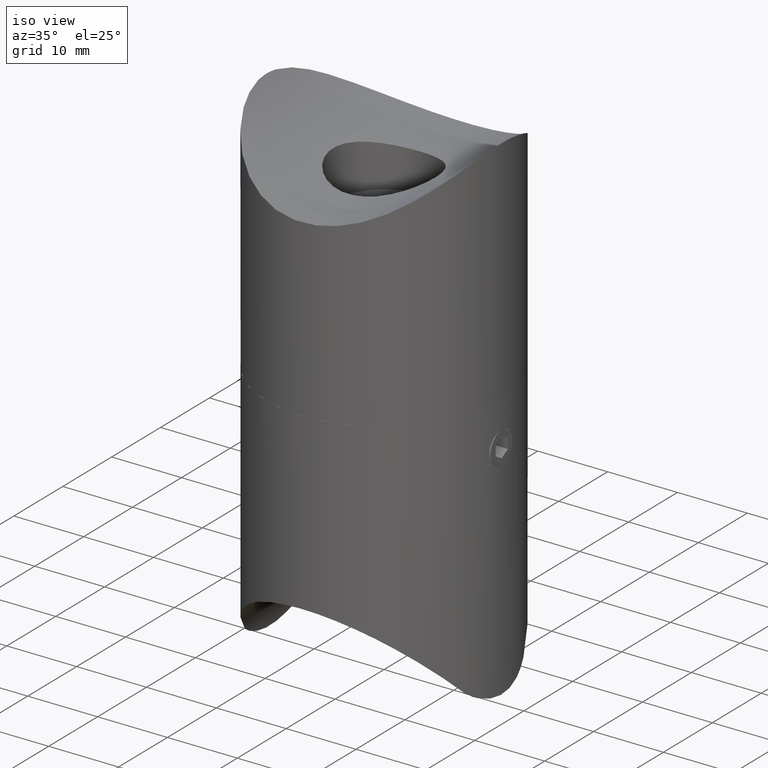
[diagram: clean part render]
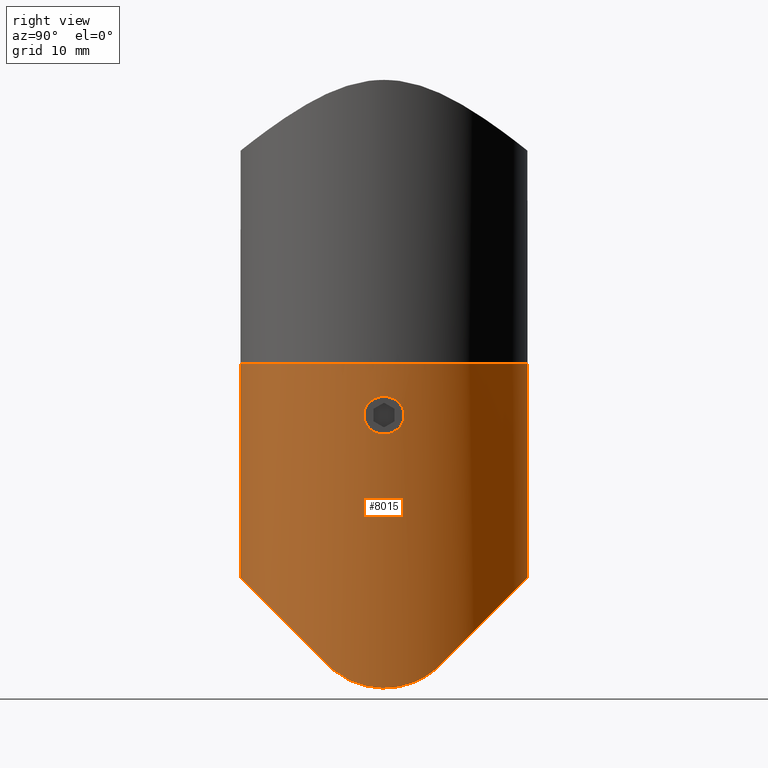
[diagram: tour spotlight — one face highlighted and labeled with its STEP entity id]
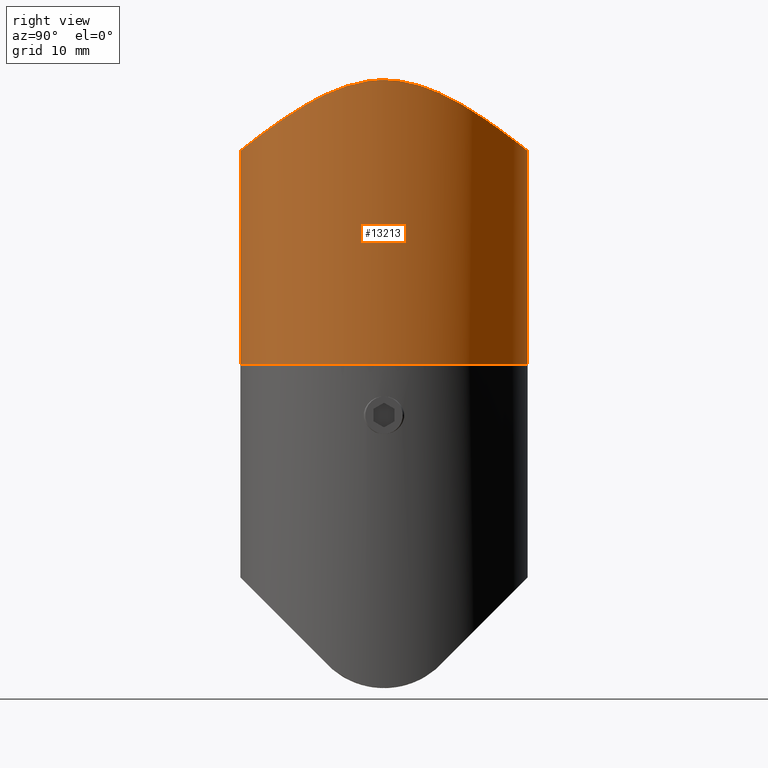
[diagram: tour spotlight — one face highlighted and labeled with its STEP entity id]
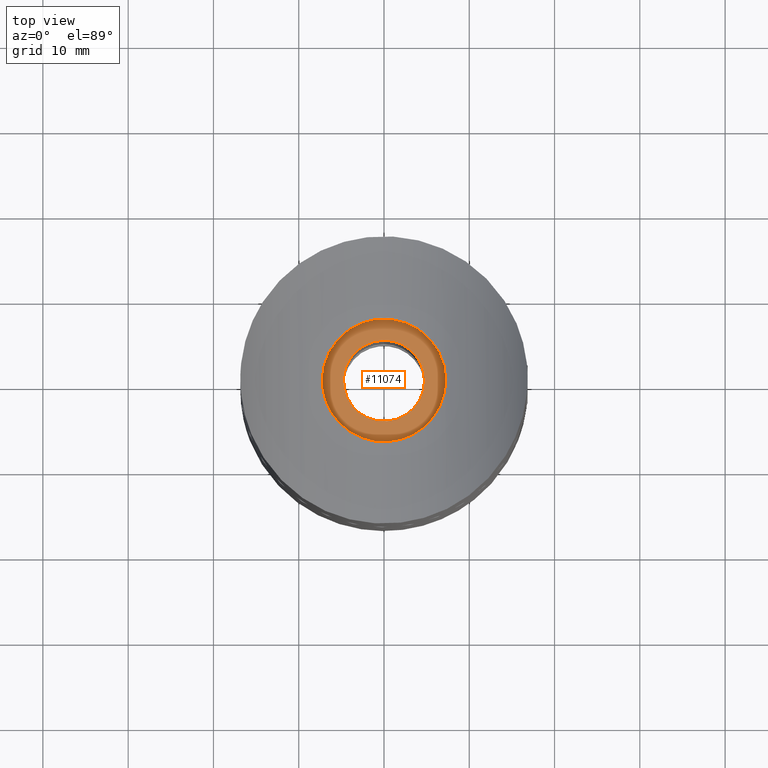
[diagram: tour spotlight — one face highlighted and labeled with its STEP entity id]
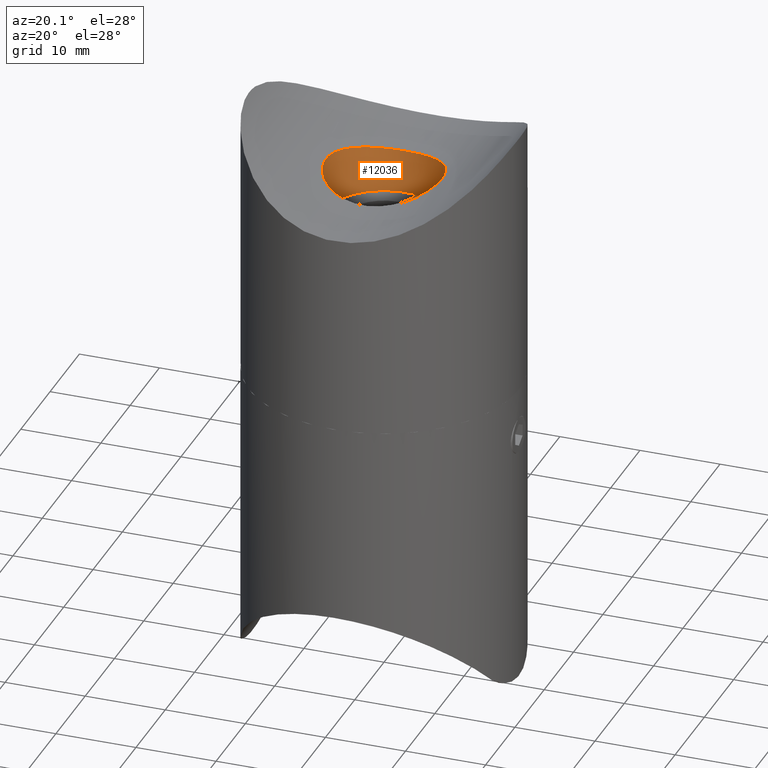
[diagram: tour spotlight — one face highlighted and labeled with its STEP entity id]
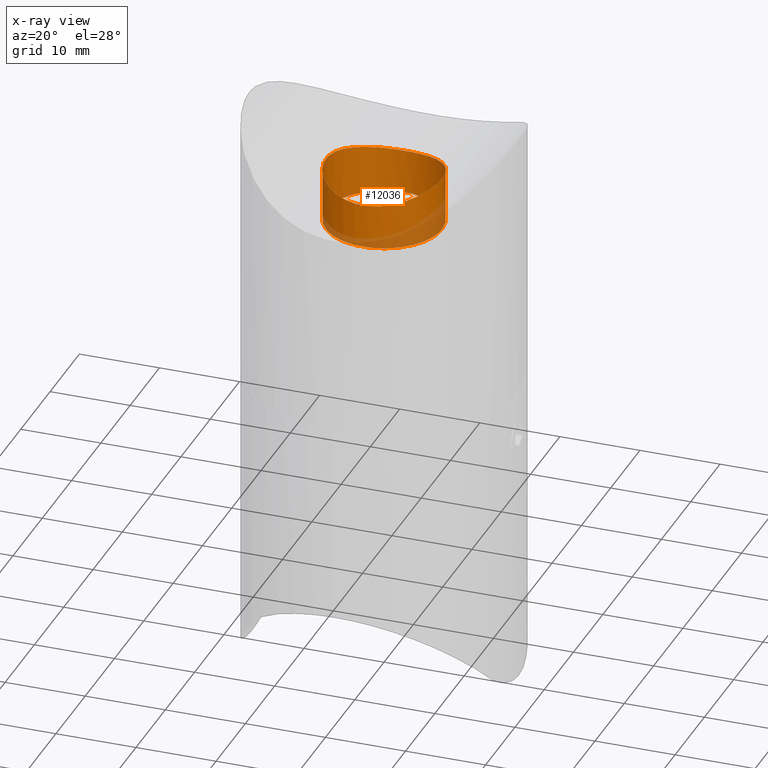
[diagram: x-ray of the same camera — body ghosted, this tour face saturated]
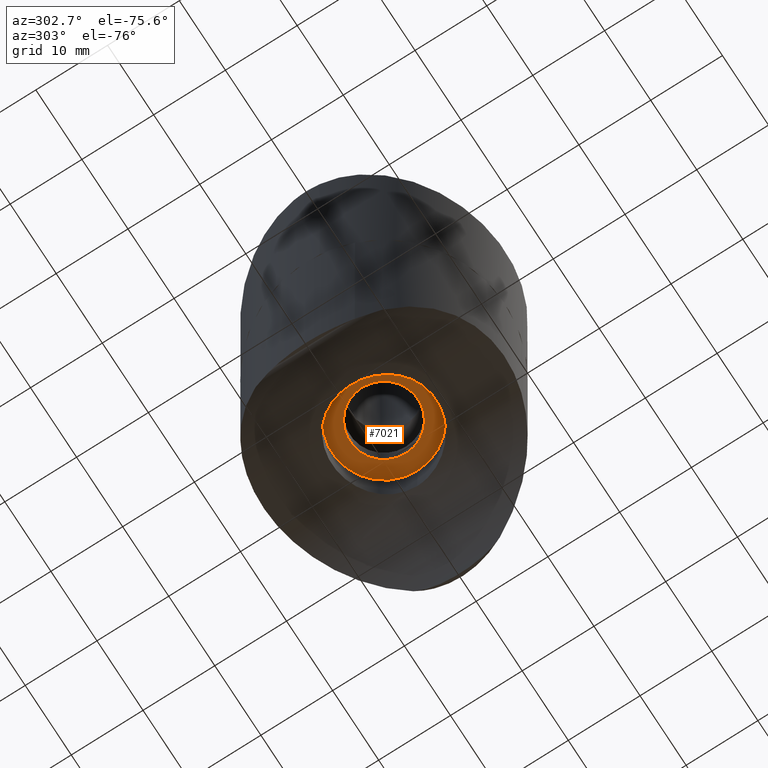
[diagram: tour spotlight — one face highlighted and labeled with its STEP entity id]
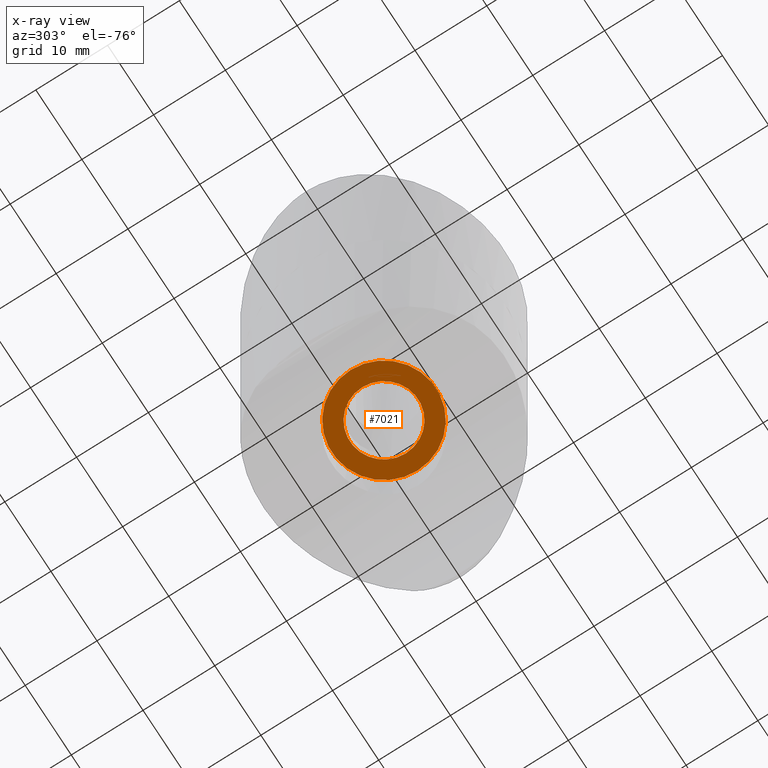
[diagram: x-ray of the same camera — body ghosted, this tour face saturated]
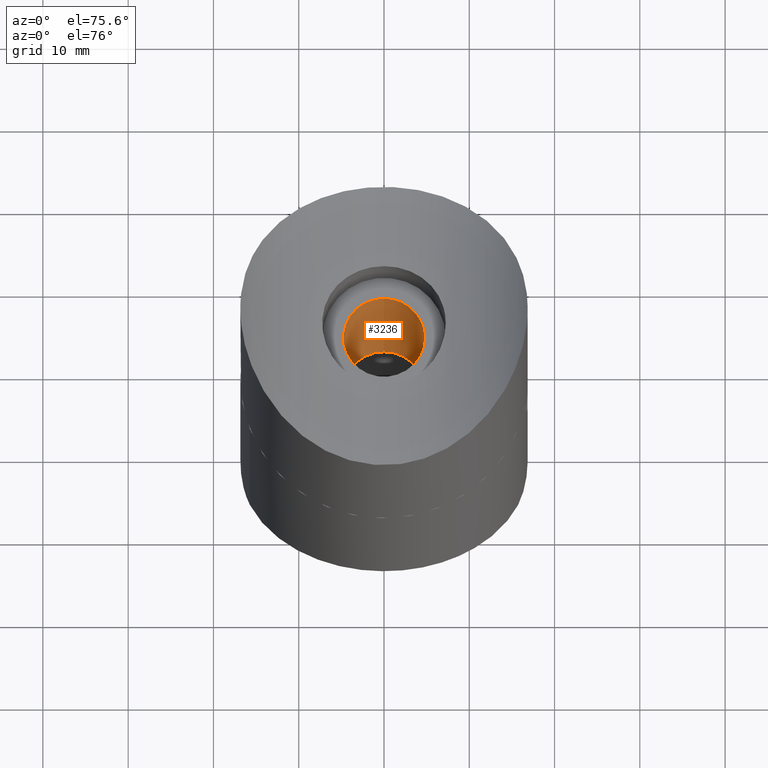
[diagram: tour spotlight — one face highlighted and labeled with its STEP entity id]
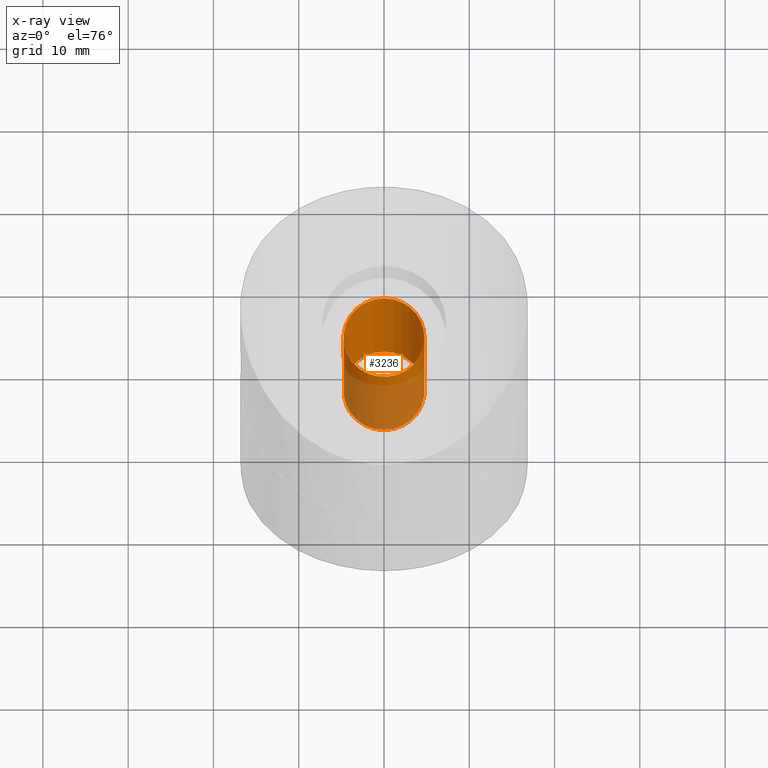
[diagram: x-ray of the same camera — body ghosted, this tour face saturated]
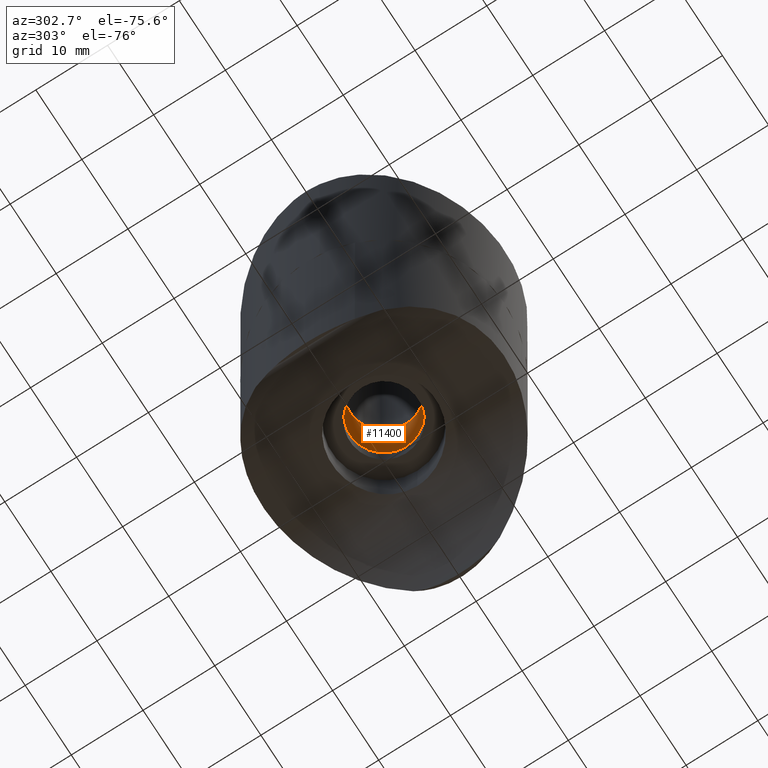
[diagram: tour spotlight — one face highlighted and labeled with its STEP entity id]
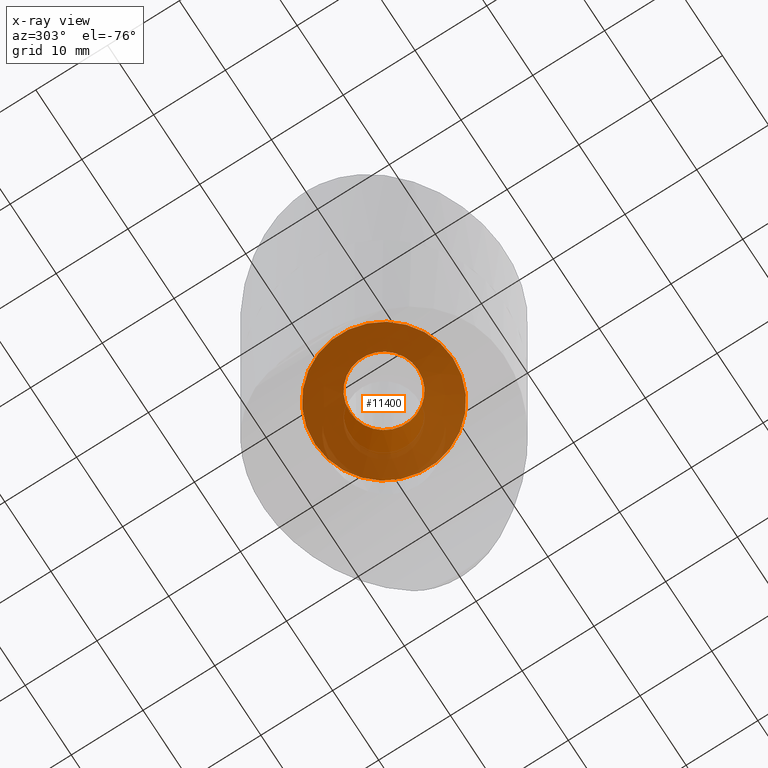
[diagram: x-ray of the same camera — body ghosted, this tour face saturated]
A machine part: a face-by-face anatomy tour. The part has 267 B-rep faces; the first image is the clean iso view, then the 7 largest visible faces are spotlighted one at a time (largest first), each with its STEP entity span.

Face 1 — right view, entity #8015. In plain terms, the highlighted cylindrical surface (bore or boss wall) has radius 16.85 mm, axis along (0, 0, 1).
Definition (entity closure, byte-faithful):
#128 = CARTESIAN_POINT ( 'NONE',  ( 16.82470805377696621, -0.9316069031304415882, 7.887072616402559078 ) ) ;
#223 = CARTESIAN_POINT ( 'NONE',  ( 16.75142118943714920, 1.821610551250329779, 7.053819643136172601 ) ) ;
#467 = CARTESIAN_POINT ( 'NONE',  ( 16.72038853387282842, 2.086105912219641034, 6.277310456367779956 ) ) ;
#500 = CARTESIAN_POINT ( 'NONE',  ( 16.43280884787452578, 3.762289881583479989, 37.23353797108027408 ) ) ;
#510 = CARTESIAN_POINT ( 'NONE',  ( 16.76708749003680765, 1.671266673559923310, 4.721056794194323558 ) ) ;
#578 = CARTESIAN_POINT ( 'NONE',  ( -16.85014251503895366, 0.2676459821920611493, 38.00025478994079720 ) ) ;
#620 = EDGE_CURVE ( 'NONE', #7857, #10049, #14077, .T. ) ;
#631 = CARTESIAN_POINT ( 'NONE',  ( -16.84348744544617560, 0.5445763428923199312, 37.98837341624884800 ) ) ;
#827 = CARTESIAN_POINT ( 'NONE',  ( 16.71493696397691409, -2.198981153887706430, 37.75670965707858784 ) ) ;
#872 = CARTESIAN_POINT ( 'NONE',  ( 16.85014251503895721, -0.2676459821920630922, 38.00025478994081141 ) ) ;
#1222 = CARTESIAN_POINT ( 'NONE',  ( 16.77577967731439301, 1.582762094997031577, 4.613065910484957399 ) ) ;
#1323 = CARTESIAN_POINT ( 'NONE',  ( 16.84175240667775952, -0.5439844916219714888, 3.967064444130375733 ) ) ;
#1563 = CARTESIAN_POINT ( 'NONE',  ( 16.72035001984090385, -2.086414395923750220, 6.275212510296473312 ) ) ;
#1604 = CARTESIAN_POINT ( 'NONE',  ( 16.58314585939784536, 2.998192180614575708, 37.51452188851639846 ) ) ;
#1615 = CARTESIAN_POINT ( 'NONE',  ( 16.74417814046707775, 1.886220721296384406, 6.933337249669180302 ) ) ;
#1697 = CARTESIAN_POINT ( 'NONE',  ( 16.62814693144454736, 2.738436798371199021, 37.59758244686475592 ) ) ;
#1719 = CARTESIAN_POINT ( 'NONE',  ( -16.43428046307178292, 3.756472632656497002, 37.23634495581666215 ) ) ;
#1849 = VERTEX_POINT ( 'NONE', #9237 ) ;
#2249 = CARTESIAN_POINT ( 'NONE',  ( -15.73081969632409916, 6.038527277552182326, 35.81147272244751889 ) ) ;
#2601 = FACE_OUTER_BOUND ( 'NONE', #8670, .T. ) ;
#2616 = CARTESIAN_POINT ( 'NONE',  ( 16.76730677969570849, -1.678588376582538011, 4.708782559360734865 ) ) ;
#2629 = CARTESIAN_POINT ( 'NONE',  ( -15.88728008807810710, -5.630936138327259144, 36.15159307419044410 ) ) ;
#2661 = EDGE_CURVE ( 'NONE', #4329, #7857, #10214, .T. ) ;
#2673 = CARTESIAN_POINT ( 'NONE',  ( 16.74399011788218061, 1.887882307002481275, 5.070033963584569925 ) ) ;
#2685 = CARTESIAN_POINT ( 'NONE',  ( -16.82226562529596947, -1.112895413794378285, 37.95068448030452402 ) ) ;
#2707 = CARTESIAN_POINT ( 'NONE',  ( 9.163197427450773702, -23.14767939304750399, 18.70232060695236243 ) ) ;
#2710 = CARTESIAN_POINT ( 'NONE',  ( 16.70681551791330577, 2.208307433939758813, 37.74175659974424946 ) ) ;
#2719 = CARTESIAN_POINT ( 'NONE',  ( 16.83685818288646985, -0.6774244628047977335, 4.007504924617327546 ) ) ;
#2784 = CARTESIAN_POINT ( 'NONE',  ( -16.84970803430263686, -0.5617719772155561619, 37.99947802054371948 ) ) ;
#3422 = CARTESIAN_POINT ( 'NONE',  ( 16.72687648871718125, 2.033425876355367645, 5.457848504207877482 ) ) ;
#3715 = CARTESIAN_POINT ( 'NONE',  ( 16.71864325555510078, 2.099873260360534566, 6.140772636756999248 ) ) ;
#3805 = CARTESIAN_POINT ( 'NONE',  ( 16.82226562529597302, 1.112895413794376731, 37.95068448030452402 ) ) ;
#3814 = CARTESIAN_POINT ( 'NONE',  ( 16.71861780999251579, -2.100075838938551431, 6.135933320310846817 ) ) ;
#3829 = CARTESIAN_POINT ( 'NONE',  ( -16.31214936237762103, -4.251566880823711259, 37.00407816512370829 ) ) ;
#3860 = CARTESIAN_POINT ( 'NONE',  ( 16.84970803430263331, 0.5617719772155539415, 37.99947802054371238 ) ) ;
#3868 = EDGE_LOOP ( 'NONE', ( #9592, #9424, #9000, #7279 ) ) ;
#3925 = CARTESIAN_POINT ( 'NONE',  ( -16.79577059308619269, 1.378449905016476906, 37.90279007098589403 ) ) ;
#4142 = CARTESIAN_POINT ( 'NONE',  ( 16.84348744544617560, -0.5445763428923213745, 37.98837341624884800 ) ) ;
#4329 = VERTEX_POINT ( 'NONE', #13818 ) ;
#4550 = CARTESIAN_POINT ( 'NONE',  ( 16.76718787598699123, -1.670252321054249478, 7.280216823563589124 ) ) ;
#4596 = CARTESIAN_POINT ( 'NONE',  ( 16.77600394136569406, 1.580396089796152648, 7.389635195289213421 ) ) ;
#4841 = CARTESIAN_POINT ( 'NONE',  ( 16.72032527160970972, 2.086609852128813003, 5.726488822860591910 ) ) ;
#4858 = CARTESIAN_POINT ( 'NONE',  ( -16.58314585939784180, -2.998192180614574820, 37.51452188851638425 ) ) ;
#4888 = CARTESIAN_POINT ( 'NONE',  ( 15.73081969632404409, 6.038527277552358186, 35.81147272244737678 ) ) ;
#4900 = CARTESIAN_POINT ( 'NONE',  ( 16.74399274423919337, -1.887859584753791120, 6.930019843766959120 ) ) ;
#4945 = CARTESIAN_POINT ( 'NONE',  ( 16.84167384015457003, -0.5465052815002038322, 8.032287449703323645 ) ) ;
#5129 = EDGE_CURVE ( 'NONE', #10049, #1849, #14128, .T. ) ;
#5208 = CYLINDRICAL_SURFACE ( 'NONE', #10139, 16.85000000000000142 ) ;
#5222 = CARTESIAN_POINT ( 'NONE',  ( 16.79577059308618914, -1.378449905016477350, 37.90279007098588693 ) ) ;
#5776 = CARTESIAN_POINT ( 'NONE',  ( 16.85000000000000142, 0.000000000000000000, 3.899999999999989697 ) ) ;
#5789 = EDGE_CURVE ( 'NONE', #12569, #12569, #9933, .T. ) ;
#5937 = CARTESIAN_POINT ( 'NONE',  ( 15.73081969632404409, 6.038527277552358186, 35.81147272244737678 ) ) ;
#5964 = CARTESIAN_POINT ( 'NONE',  ( 16.71861163317188925, 2.100125014199099471, 5.863034421944958829 ) ) ;
#5976 = CARTESIAN_POINT ( 'NONE',  ( -15.73081969632404409, -6.038527277552353745, 35.81147272244738389 ) ) ;
#6009 = CARTESIAN_POINT ( 'NONE',  ( 16.84825868416816519, -0.2771733612859200724, 8.086153213146793917 ) ) ;
#6054 = CARTESIAN_POINT ( 'NONE',  ( 16.84292318154716384, 0.5499933418785079020, 8.045080447486299136 ) ) ;
#6123 = CARTESIAN_POINT ( 'NONE',  ( -16.31093644594179537, 4.255802279276583278, 37.00168369420707393 ) ) ;
#6624 = CARTESIAN_POINT ( 'NONE',  ( 16.84828450116990695, -0.2754135483211228030, 3.913641095390027136 ) ) ;
#6669 = AXIS2_PLACEMENT_3D ( 'NONE', #10171, #9105, #12358 ) ;
#6821 = CARTESIAN_POINT ( 'NONE',  ( 16.79298819926606967, -1.388337579595593452, 4.418467793772453689 ) ) ;
#6928 = FACE_BOUND ( 'NONE', #9361, .T. ) ;
#6977 =( BOUNDED_CURVE ( )  B_SPLINE_CURVE ( 3, ( #7161, #2707, #10463, #11608 ),
 .UNSPECIFIED., .F., .T. ) 
 B_SPLINE_CURVE_WITH_KNOTS ( ( 4, 4 ),
 ( 5.078909860511432228, 7.487460753847730466 ),
 .UNSPECIFIED. ) 
 CURVE ( )  GEOMETRIC_REPRESENTATION_ITEM ( )  RATIONAL_B_SPLINE_CURVE ( ( 1.000000000000000000, 0.5722463809120582612, 0.5722463809120582612, 1.000000000000000000 ) ) 
 REPRESENTATION_ITEM ( '' )  );
#7030 = CARTESIAN_POINT ( 'NONE',  ( -16.62814693144455802, -2.738436798371198133, 37.59758244686476303 ) ) ;
#7067 = CARTESIAN_POINT ( 'NONE',  ( 16.81736275492434274, -1.054411588659091681, 7.821238976576492696 ) ) ;
#7111 = CARTESIAN_POINT ( 'NONE',  ( 16.31214936237762458, 4.251566880823713035, 37.00407816512372250 ) ) ;
#7112 = EDGE_CURVE ( 'NONE', #10507, #10507, #14220, .T. ) ;
#7118 = CARTESIAN_POINT ( 'NONE',  ( -15.73081969632409916, 6.038527277552182326, 35.81147272244751889 ) ) ;
#7121 = CARTESIAN_POINT ( 'NONE',  ( 16.83685912331941381, -0.6773975038951545180, 7.992502723524682828 ) ) ;
#7161 = CARTESIAN_POINT ( 'NONE',  ( 15.73081969632409916, -6.038527277552182326, 35.81147272244751889 ) ) ;
#7189 = CARTESIAN_POINT ( 'NONE',  ( -15.88888304916085481, 5.626760303622162063, 36.15507766016894209 ) ) ;
#7262 = DIRECTION ( 'NONE',  ( -1.000000000000000000, 0.000000000000000000, 0.000000000000000000 ) ) ;
#7279 = ORIENTED_EDGE ( 'NONE', *, *, #5129, .T. ) ;
#7450 = CARTESIAN_POINT ( 'NONE',  ( 16.03865052887910281, -5.188467017947991700, 36.46173526040616508 ) ) ;
#7857 = VERTEX_POINT ( 'NONE', #2249 ) ;
#7906 = CARTESIAN_POINT ( 'NONE',  ( 16.72583090175945486, -2.044555216642882201, 5.448102421703835851 ) ) ;
#7907 = CARTESIAN_POINT ( 'NONE',  ( 16.85000000000000142, 0.000000000000000000, 0.000000000000000000 ) ) ;
#7950 = CARTESIAN_POINT ( 'NONE',  ( 16.85001280083926289, 0.2734326887627684943, 8.100102711503058828 ) ) ;
#8015 = ADVANCED_FACE ( 'NONE', ( #6928, #2601, #10921 ), #5208, .T. ) ;
#8203 = CARTESIAN_POINT ( 'NONE',  ( 16.72699524459659060, 2.032451890674698891, 6.545782262721565381 ) ) ;
#8250 = CARTESIAN_POINT ( 'NONE',  ( 16.84279730069747671, 0.5537141514316638036, 3.955935405624201540 ) ) ;
#8301 = CARTESIAN_POINT ( 'NONE',  ( -16.63580770995027436, 2.728839096824725807, 37.61289066814492088 ) ) ;
#8355 = CARTESIAN_POINT ( 'NONE',  ( -16.43280884787452223, -3.762289881583476880, 37.23353797108027408 ) ) ;
#8604 = CARTESIAN_POINT ( 'NONE',  ( 16.63580770995026725, -2.728839096824727584, 37.61289066814492088 ) ) ;
#8670 = EDGE_LOOP ( 'NONE', ( #13192 ) ) ;
#8955 = CARTESIAN_POINT ( 'NONE',  ( 16.81860268782239842, 1.058784162637065762, 4.165940152441776512 ) ) ;
#9000 = ORIENTED_EDGE ( 'NONE', *, *, #620, .T. ) ;
#9052 = CARTESIAN_POINT ( 'NONE',  ( 16.80169361874308720, 1.289740945821950868, 7.679737895979164009 ) ) ;
#9105 = DIRECTION ( 'NONE',  ( 0.000000000000000000, 0.000000000000000000, 1.000000000000000000 ) ) ;
#9237 = CARTESIAN_POINT ( 'NONE',  ( 15.73081969632409916, -6.038527277552182326, 35.81147272244751889 ) ) ;
#9291 = CARTESIAN_POINT ( 'NONE',  ( 16.76730258132955598, 1.669113840482515876, 7.281740936459419444 ) ) ;
#9302 = CARTESIAN_POINT ( 'NONE',  ( -15.73081969632409916, 6.038527277552182326, 35.81147272244751889 ) ) ;
#9341 = CARTESIAN_POINT ( 'NONE',  ( 16.85000000000000853, 0.2777611495988379642, 3.899999999999991473 ) ) ;
#9361 = EDGE_LOOP ( 'NONE', ( #13112 ) ) ;
#9424 = ORIENTED_EDGE ( 'NONE', *, *, #2661, .T. ) ;
#9459 = CARTESIAN_POINT ( 'NONE',  ( -16.03865052887909926, 5.188467017947989923, 36.46173526040616508 ) ) ;
#9592 = ORIENTED_EDGE ( 'NONE', *, *, #13161, .T. ) ;
#9714 = CARTESIAN_POINT ( 'NONE',  ( 16.31093644594179892, -4.255802279276587718, 37.00168369420708103 ) ) ;
#9933 = CIRCLE ( 'NONE', #6669, 16.85000000000000142 ) ;
#10049 = VERTEX_POINT ( 'NONE', #5937 ) ;
#10069 = CARTESIAN_POINT ( 'NONE',  ( 16.77572472370035328, -1.583421296792411281, 7.386350526010375006 ) ) ;
#10112 = CARTESIAN_POINT ( 'NONE',  ( 16.81880704758045297, 1.055596263666972900, 7.835909377102741935 ) ) ;
#10139 = AXIS2_PLACEMENT_3D ( 'NONE', #11758, #13794, #7262 ) ;
#10171 = CARTESIAN_POINT ( 'NONE',  ( 0.000000000000000000, 0.000000000000000000, 0.000000000000000000 ) ) ;
#10214 = B_SPLINE_CURVE_WITH_KNOTS ( 'NONE', 3,
 ( #5976, #2629, #10527, #3829, #8355, #4858, #7030, #13807, #13707, #2685, #2784, #578, #631, #11637, #3925, #12698, #8301, #1719, #6123, #9459, #7189, #9302 ),
 .UNSPECIFIED., .F., .F.,
 ( 4, 2, 2, 2, 2, 2, 2, 2, 2, 2, 4 ),
 ( 0.001765099865405819063, 0.003425316248073022492, 0.005085532630740225921, 0.005915640822073822865, 0.006745749013407419808, 0.008405965396074611962, 0.009236073587408209773, 0.01006618177874180585, 0.01172639816140899800, 0.01338661454407618842, 0.01504683092674338057 ),
 .UNSPECIFIED. ) ;
#10364 = CARTESIAN_POINT ( 'NONE',  ( 16.73193389099209583, 1.991913270354100263, 6.679138096748464370 ) ) ;
#10419 = CARTESIAN_POINT ( 'NONE',  ( 16.80167048361962046, -1.280409023430384430, 4.329858094025039073 ) ) ;
#10463 = CARTESIAN_POINT ( 'NONE',  ( -9.163197427450540999, -23.14767939304759281, 18.70232060695226650 ) ) ;
#10464 = CARTESIAN_POINT ( 'NONE',  ( 16.74059423650856004, 1.936793445644416911, 37.80306997967089444 ) ) ;
#10476 = CARTESIAN_POINT ( 'NONE',  ( 16.75011601015751594, -1.835003824087994673, 4.942853871778710939 ) ) ;
#10507 = VERTEX_POINT ( 'NONE', #5776 ) ;
#10527 = CARTESIAN_POINT ( 'NONE',  ( -16.03787406605432153, -5.191207297345767024, 36.46020626863278835 ) ) ;
#10829 = CARTESIAN_POINT ( 'NONE',  ( 16.81639131896426775, -1.099370604302407850, 37.93980328780560285 ) ) ;
#10921 = FACE_OUTER_BOUND ( 'NONE', #3868, .T. ) ;
#11028 = CARTESIAN_POINT ( 'NONE',  ( 16.85000000000000142, 1.897353801849632760E-16, 3.899999999999990141 ) ) ;
#11480 = CARTESIAN_POINT ( 'NONE',  ( 16.75135943013242112, -1.822166108549415631, 7.052809861359713217 ) ) ;
#11522 = CARTESIAN_POINT ( 'NONE',  ( 9.163197427450526789, 23.14767939304759281, 18.70232060695227361 ) ) ;
#11525 = CARTESIAN_POINT ( 'NONE',  ( 16.72695422414210853, -2.032789266246281645, 6.544641860652885335 ) ) ;
#11569 = CARTESIAN_POINT ( 'NONE',  ( 16.80157130502821872, -1.281669033357676346, 7.669137411069561594 ) ) ;
#11608 = CARTESIAN_POINT ( 'NONE',  ( -15.73081969632404409, -6.038527277552353745, 35.81147272244738389 ) ) ;
#11611 = CARTESIAN_POINT ( 'NONE',  ( 16.03787406605431798, 5.191207297345769689, 36.46020626863278125 ) ) ;
#11637 = CARTESIAN_POINT ( 'NONE',  ( -16.81639131896427131, 1.099370604302405630, 37.93980328780560995 ) ) ;
#11758 = CARTESIAN_POINT ( 'NONE',  ( 0.000000000000000000, 0.000000000000000000, 44.99999999999970868 ) ) ;
#12140 = CARTESIAN_POINT ( 'NONE',  ( 16.84999999999999787, -0.1388805747994196760, 3.899999999999989697 ) ) ;
#12282 = CARTESIAN_POINT ( 'NONE',  ( 16.75121714408563989, 1.823480020288709813, 4.949405580903636803 ) ) ;
#12341 = CARTESIAN_POINT ( 'NONE',  ( 16.85000000000000142, 1.897353801849632760E-16, 3.899999999999990141 ) ) ;
#12358 = DIRECTION ( 'NONE',  ( 1.000000000000000000, 0.000000000000000000, 0.000000000000000000 ) ) ;
#12569 = VERTEX_POINT ( 'NONE', #7907 ) ;
#12590 = CARTESIAN_POINT ( 'NONE',  ( 16.73179024279504290, -1.993113670112692137, 6.675609813099995904 ) ) ;
#12620 = CARTESIAN_POINT ( 'NONE',  ( 15.88728008807810710, 5.630936138327259144, 36.15159307419043699 ) ) ;
#12631 = CARTESIAN_POINT ( 'NONE',  ( 15.73081969632404409, 6.038527277552358186, 35.81147272244737678 ) ) ;
#12633 = CARTESIAN_POINT ( 'NONE',  ( 16.71864651011834368, -2.099847349993974266, 5.724633527494356500 ) ) ;
#12686 = CARTESIAN_POINT ( 'NONE',  ( -9.163197427450777255, 23.14767939304749333, 18.70232060695237308 ) ) ;
#12688 = CARTESIAN_POINT ( 'NONE',  ( 16.73179229270343171, 1.993095920084948958, 5.324348397974262070 ) ) ;
#12698 = CARTESIAN_POINT ( 'NONE',  ( -16.71493696397692119, 2.198981153887705542, 37.75670965707859494 ) ) ;
#12948 = CARTESIAN_POINT ( 'NONE',  ( 15.88888304916085481, -5.626760303622168280, 36.15507766016894919 ) ) ;
#12998 = CARTESIAN_POINT ( 'NONE',  ( 16.43428046307179002, -3.756472632656498334, 37.23634495581666215 ) ) ;
#13112 = ORIENTED_EDGE ( 'NONE', *, *, #7112, .T. ) ;
#13161 = EDGE_CURVE ( 'NONE', #1849, #4329, #6977, .T. ) ;
#13192 = ORIENTED_EDGE ( 'NONE', *, *, #5789, .T. ) ;
#13407 = CARTESIAN_POINT ( 'NONE',  ( 16.79305717288698929, -1.387585599757974686, 7.582339087379592613 ) ) ;
#13449 = CARTESIAN_POINT ( 'NONE',  ( 16.82470459632055082, -0.9316719486962703467, 4.112957894417013982 ) ) ;
#13694 = CARTESIAN_POINT ( 'NONE',  ( 16.81750207811601427, -1.052236741413237642, 4.177469041855343512 ) ) ;
#13707 = CARTESIAN_POINT ( 'NONE',  ( -16.74059423650856004, -1.936793445644416911, 37.80306997967088734 ) ) ;
#13748 = CARTESIAN_POINT ( 'NONE',  ( 16.80145891328454866, 1.292732342686097047, 4.322581995373128372 ) ) ;
#13794 = DIRECTION ( 'NONE',  ( 0.000000000000000000, 0.000000000000000000, -1.000000000000000000 ) ) ;
#13798 = CARTESIAN_POINT ( 'NONE',  ( 16.84999357196270608, -0.1378978997242325810, 8.099948422649504209 ) ) ;
#13807 = CARTESIAN_POINT ( 'NONE',  ( -16.70681551791330577, -2.208307433939757480, 37.74175659974423525 ) ) ;
#13818 = CARTESIAN_POINT ( 'NONE',  ( -15.73081969632404409, -6.038527277552353745, 35.81147272244738389 ) ) ;
#14014 = CARTESIAN_POINT ( 'NONE',  ( 15.73081969632409916, -6.038527277552182326, 35.81147272244751889 ) ) ;
#14077 =( BOUNDED_CURVE ( )  B_SPLINE_CURVE ( 3, ( #7118, #12686, #11522, #12631 ),
 .UNSPECIFIED., .F., .T. ) 
 B_SPLINE_CURVE_WITH_KNOTS ( ( 4, 4 ),
 ( 5.078909860511432228, 7.487460753847729578 ),
 .UNSPECIFIED. ) 
 CURVE ( )  GEOMETRIC_REPRESENTATION_ITEM ( )  RATIONAL_B_SPLINE_CURVE ( ( 1.000000000000000000, 0.5722463809120585942, 0.5722463809120585942, 1.000000000000000000 ) ) 
 REPRESENTATION_ITEM ( '' )  );
#14128 = B_SPLINE_CURVE_WITH_KNOTS ( 'NONE', 3,
 ( #4888, #12620, #11611, #7111, #500, #1604, #1697, #2710, #10464, #3805, #3860, #872, #4142, #10829, #5222, #827, #8604, #12998, #9714, #7450, #12948, #14014 ),
 .UNSPECIFIED., .F., .F.,
 ( 4, 2, 2, 2, 2, 2, 2, 2, 2, 2, 4 ),
 ( 0.001765099865405812341, 0.003425316248073014685, 0.005085532630740217247, 0.005915640822073814191, 0.006745749013407412002, 0.008405965396074606757, 0.009236073587408204569, 0.01006618177874180065, 0.01172639816140899453, 0.01338661454407618842, 0.01504683092674338231 ),
 .UNSPECIFIED. ) ;
#14220 = B_SPLINE_CURVE_WITH_KNOTS ( 'NONE', 3,
 ( #11028, #12140, #6624, #1323, #2719, #13449, #13694, #10419, #6821, #2616, #10476, #7906, #12633, #3814, #1563, #11525, #12590, #4900, #11480, #4550, #10069, #13407, #11569, #7067, #128, #7121, #4945, #6009, #13798, #7950, #6054, #10112, #9052, #4596, #9291, #223, #1615, #10364, #8203, #467, #3715, #5964, #4841, #3422, #12688, #2673, #12282, #510, #1222, #13748, #8955, #8250, #9341, #12341 ),
 .UNSPECIFIED., .T., .F.,
 ( 4, 2, 2, 2, 2, 2, 2, 2, 2, 2, 2, 2, 2, 2, 2, 2, 2, 2, 2, 2, 2, 2, 2, 2, 2, 2, 4 ),
 ( 0.000000000000000000, 0.0004106973737139094430, 0.0008213947474278188859, 0.001232092121141728329, 0.001642789494855637772, 0.002464184242283454489, 0.003285578989711271207, 0.003696276363425178048, 0.004106973737139084021, 0.004517671110852990862, 0.004928368484566897703, 0.005339065858280803677, 0.005749763231994710518, 0.006160460605708617358, 0.006571157979422523332, 0.007392552726850337014, 0.008213947474278150696, 0.008624644847992055802, 0.009035342221705962643, 0.009446039595419869483, 0.009856736969133776324, 0.01026743434284768143, 0.01067813171656158827, 0.01108882909027549511, 0.01149952646398940195, 0.01232092121141721910, 0.01314231595884503279 ),
 .UNSPECIFIED. ) ;

Face 2 — right view, entity #13213. In plain terms, the highlighted cylindrical surface (bore or boss wall) has radius 16.85 mm, axis along (-0, -0, -1).
Definition (entity closure, byte-faithful):
#7 = CARTESIAN_POINT ( 'NONE',  ( 12.14784170154766407, -11.68723754140081716, 28.82084089679802474 ) ) ;
#151 = CARTESIAN_POINT ( 'NONE',  ( 5.358378406793971926, -15.98417104893211693, 25.68166419200519712 ) ) ;
#154 = CARTESIAN_POINT ( 'NONE',  ( 8.169526389507437258, 14.74616821905684283, 26.63106651715606432 ) ) ;
#197 = CARTESIAN_POINT ( 'NONE',  ( 2.226111781718973504, -16.71136270365287047, 25.11004907578960044 ) ) ;
#204 = CARTESIAN_POINT ( 'NONE',  ( -5.336367273435848269, 15.99150897234712865, 25.67594462300922586 ) ) ;
#246 = CARTESIAN_POINT ( 'NONE',  ( -12.80575477641203008, -10.99506568324726885, 29.28733733575847964 ) ) ;
#254 = CARTESIAN_POINT ( 'NONE',  ( 8.612801258602942767, 14.49133680741023333, 26.82261412847639193 ) ) ;
#295 = CARTESIAN_POINT ( 'NONE',  ( -16.75380553784719950, 1.797915459636668878, 33.20961894323340147 ) ) ;
#569 = ORIENTED_EDGE ( 'NONE', *, *, #11146, .T. ) ;
#870 = CARTESIAN_POINT ( 'NONE',  ( 0.000000000000000000, 0.000000000000000000, 46.20000000000000284 ) ) ;
#1204 = CARTESIAN_POINT ( 'NONE',  ( -3.799131235580128774, 16.42494322206031043, 25.33634400596605118 ) ) ;
#1260 = CARTESIAN_POINT ( 'NONE',  ( 9.879719700273652094, 13.65886599007097146, 27.43734619141542908 ) ) ;
#1294 = EDGE_CURVE ( 'NONE', #11564, #6948, #2233, .T. ) ;
#1305 = CARTESIAN_POINT ( 'NONE',  ( 15.81468342291589657, 5.907119930207309189, 32.07368849711814818 ) ) ;
#1400 = CARTESIAN_POINT ( 'NONE',  ( -7.307117564174850699, 15.21988607760609469, 26.27266255987092336 ) ) ;
#1790 = CARTESIAN_POINT ( 'NONE',  ( -16.75380553784719950, 1.797915459636668878, 33.20961894323340147 ) ) ;
#2155 = CARTESIAN_POINT ( 'NONE',  ( 15.20531351964298850, -7.277979822336642535, 31.42358611185059303 ) ) ;
#2233 = B_SPLINE_CURVE_WITH_KNOTS ( 'NONE', 3,
 ( #12012, #5483, #5438, #7709, #9924, #7759, #5778, #10208 ),
 .UNSPECIFIED., .F., .F.,
 ( 4, 2, 2, 4 ),
 ( 0.006278479700174100127, 0.008077391916698430444, 0.008976848024960595168, 0.009876304133222761628 ),
 .UNSPECIFIED. ) ;
#2311 = CARTESIAN_POINT ( 'NONE',  ( 2.144770709731461444, 16.72175678162838608, 25.10180907550674689 ) ) ;
#2349 = CARTESIAN_POINT ( 'NONE',  ( -16.69637106392835690, -2.333116379150808495, 33.13554521106189554 ) ) ;
#2353 = CARTESIAN_POINT ( 'NONE',  ( 12.15067100014986501, 11.71608894380430321, 28.80603942311008936 ) ) ;
#2367 = B_SPLINE_CURVE_WITH_KNOTS ( 'NONE', 3,
 ( #3222, #13381, #10966, #4374, #12069, #7778, #5456, #13179, #7685, #8786, #2155, #9898, #3263, #12114, #13230, #7, #8836, #9947, #3318, #11052, #5554, #2446, #151, #5690, #10091, #3449, #197, #12512, #11207, #13568, #2537, #4764, #4572, #6744, #5799, #13428, #12457, #10181, #12314, #11393, #2393, #8032, #13523, #7880, #246, #3637, #12411, #3585, #11306, #10290, #8083, #5878, #4665, #3547, #2349, #10238 ),
 .UNSPECIFIED., .F., .F.,
 ( 4, 2, 2, 2, 2, 2, 2, 2, 2, 2, 2, 2, 2, 2, 2, 2, 2, 2, 2, 2, 2, 2, 2, 2, 2, 2, 2, 4 ),
 ( 0.05762379732413834554, 0.05843939610888660569, 0.05925499489363487277, 0.06088619246313139999, 0.06251739003262793415, 0.06414858760212446831, 0.06741098274111752275, 0.06904218031061404304, 0.07067337788011057720, 0.07393577301910363164, 0.07719816815809668609, 0.07882936572759322025, 0.08046056329708975441, 0.08209176086658628857, 0.08372295843608282273, 0.08535415600557935689, 0.08698535357507587717, 0.09024774871406893162, 0.09187894628356546578, 0.09351014385306199994, 0.09514134142255853410, 0.09677253899205506826, 0.1000349341310481366, 0.1016661317005446707, 0.1032973292700412049, 0.1065597244090342732, 0.1081909219785307796, 0.1098221195480273138 ),
 .UNSPECIFIED. ) ;
#2393 = CARTESIAN_POINT ( 'NONE',  ( -9.874391082289394106, -13.66273255866296665, 27.43453152128715189 ) ) ;
#2401 = CARTESIAN_POINT ( 'NONE',  ( 16.26849822515842092, 4.418982904158281322, 32.60477335205871441 ) ) ;
#2446 = CARTESIAN_POINT ( 'NONE',  ( 5.861876297262081259, -15.80630658064992744, 25.82008765974585884 ) ) ;
#2451 = CARTESIAN_POINT ( 'NONE',  ( -12.16653524012214227, 11.69924100671745570, 28.81735680001559174 ) ) ;
#2502 = CARTESIAN_POINT ( 'NONE',  ( -14.50563928189218466, 8.587789373369821178, 30.73546195249033630 ) ) ;
#2537 = CARTESIAN_POINT ( 'NONE',  ( -1.047622871701130221, -16.82617475906373272, 25.01895457081716856 ) ) ;
#3199 = CARTESIAN_POINT ( 'NONE',  ( -16.81711578317035105, -1.207961391989270883, 33.28084493682786160 ) ) ;
#3222 = CARTESIAN_POINT ( 'NONE',  ( 16.75380553784718529, -1.797915459636763025, 33.20961894323338726 ) ) ;
#3244 = AXIS2_PLACEMENT_3D ( 'NONE', #3996, #7398, #10725 ) ;
#3263 = CARTESIAN_POINT ( 'NONE',  ( 13.99864917260999775, -9.428928461346940182, 30.26089817622014522 ) ) ;
#3318 = CARTESIAN_POINT ( 'NONE',  ( 9.922135874653822185, -13.65573024371412281, 27.44193756741609036 ) ) ;
#3409 = CARTESIAN_POINT ( 'NONE',  ( 4.288095124775098910, 16.33153352628145427, 25.41009414772277353 ) ) ;
#3449 = CARTESIAN_POINT ( 'NONE',  ( 2.763565128029129347, -16.63055004528183645, 25.17409886494595028 ) ) ;
#3459 = CARTESIAN_POINT ( 'NONE',  ( -14.75306275984906179, 8.155817596017406856, 30.97203812562293024 ) ) ;
#3511 = CARTESIAN_POINT ( 'NONE',  ( 16.61322421872186794, 2.864456683789939451, 33.02921195284994837 ) ) ;
#3547 = CARTESIAN_POINT ( 'NONE',  ( -16.61395989766804604, -2.860104366934913322, 33.03014467461200354 ) ) ;
#3550 = CARTESIAN_POINT ( 'NONE',  ( 11.05725543779406905, 12.72420385158253175, 28.10678940156158490 ) ) ;
#3585 = CARTESIAN_POINT ( 'NONE',  ( -14.50379350185093053, -8.591077129407022284, 30.73367796759794146 ) ) ;
#3592 = CARTESIAN_POINT ( 'NONE',  ( -15.81691932689636637, 5.900288470181504152, 32.07626911739440345 ) ) ;
#3637 = CARTESIAN_POINT ( 'NONE',  ( -13.69523529492123615, -9.828637311950920719, 30.01275475370344381 ) ) ;
#3639 = EDGE_CURVE ( 'NONE', #7379, #7379, #13337, .T. ) ;
#3996 = CARTESIAN_POINT ( 'NONE',  ( 0.000000000000000000, 0.000000000000000000, 0.000000000000000000 ) ) ;
#4020 = B_SPLINE_CURVE_WITH_KNOTS ( 'NONE', 3,
 ( #8618, #3199, #6437, #10885, #5429, #10799, #4254, #7705 ),
 .UNSPECIFIED., .F., .F.,
 ( 4, 2, 2, 4 ),
 ( 0.006278479700174095790, 0.008077391916698380137, 0.008976848024960522310, 0.009876304133222662748 ),
 .UNSPECIFIED. ) ;
#4053 = DIRECTION ( 'NONE',  ( -1.000000000000000000, 0.000000000000000000, 0.000000000000000000 ) ) ;
#4254 = CARTESIAN_POINT ( 'NONE',  ( -16.78558553031975364, 1.501774831318672065, 33.24537242244879565 ) ) ;
#4374 = CARTESIAN_POINT ( 'NONE',  ( 16.60678426932988216, -2.865252522061736862, 33.02201781672016523 ) ) ;
#4531 = CARTESIAN_POINT ( 'NONE',  ( -2.743212171241442565, 16.63390949165644628, 25.17144021655068187 ) ) ;
#4572 = CARTESIAN_POINT ( 'NONE',  ( -2.670267878382413418, -16.64599718174675758, 25.16187577647438900 ) ) ;
#4579 = CARTESIAN_POINT ( 'NONE',  ( -16.45308313992315163, 3.645481845178408342, 32.83050756234046474 ) ) ;
#4597 = CARTESIAN_POINT ( 'NONE',  ( 16.85000000000000142, 0.000000000000000000, 0.000000000000000000 ) ) ;
#4622 = CARTESIAN_POINT ( 'NONE',  ( 16.75380553784744819, 1.797915459634366275, 33.20961894323372121 ) ) ;
#4665 = CARTESIAN_POINT ( 'NONE',  ( -16.40117179362283650, -3.899413323456883962, 32.76607590578823448 ) ) ;
#4674 = CARTESIAN_POINT ( 'NONE',  ( -13.70251451450455882, 9.818345896335925360, 30.01897497850235297 ) ) ;
#4759 = EDGE_CURVE ( 'NONE', #10591, #13150, #4020, .T. ) ;
#4764 = CARTESIAN_POINT ( 'NONE',  ( -2.129375905199051289, -16.72373848630211057, 25.10023797743738072 ) ) ;
#4793 = CYLINDRICAL_SURFACE ( 'NONE', #5443, 16.85000000000000142 ) ;
#5429 = CARTESIAN_POINT ( 'NONE',  ( -16.84196098908678962, 0.6013945562252345223, 33.30872998036008426 ) ) ;
#5438 = CARTESIAN_POINT ( 'NONE',  ( 16.84978820426995583, 0.6107508088839092020, 33.31752083329007519 ) ) ;
#5443 = AXIS2_PLACEMENT_3D ( 'NONE', #870, #10685, #4053 ) ;
#5456 = CARTESIAN_POINT ( 'NONE',  ( 16.26802396891895341, -4.420290972579389077, 32.60423611358149998 ) ) ;
#5483 = CARTESIAN_POINT ( 'NONE',  ( 16.81711578317034750, 1.207961391989255784, 33.28084493682786871 ) ) ;
#5554 = CARTESIAN_POINT ( 'NONE',  ( 7.328113689039677858, -15.20969873285167218, 26.28045099295936637 ) ) ;
#5654 = CARTESIAN_POINT ( 'NONE',  ( -16.26338901050295149, 4.415185518121612418, 32.60027404866490741 ) ) ;
#5690 = CARTESIAN_POINT ( 'NONE',  ( 4.338623556160785100, -16.29055827495922415, 25.44209381662098934 ) ) ;
#5699 = CARTESIAN_POINT ( 'NONE',  ( 13.69601455258159106, 9.827532191674912099, 30.01342196753115132 ) ) ;
#5754 = CARTESIAN_POINT ( 'NONE',  ( -8.216568726637952125, 14.74550625619387390, 26.63435696207914205 ) ) ;
#5778 = CARTESIAN_POINT ( 'NONE',  ( 16.78558553031975364, -1.501774831318759107, 33.24537242244878854 ) ) ;
#5799 = CARTESIAN_POINT ( 'NONE',  ( -5.295640238658860355, -16.03075755658450774, 25.64663496829462019 ) ) ;
#5878 = CARTESIAN_POINT ( 'NONE',  ( -16.26968676083988186, -4.414653115392175309, 32.60619533452197061 ) ) ;
#6437 = CARTESIAN_POINT ( 'NONE',  ( -16.84978820426996293, -0.6107508088839381788, 33.31752083329007519 ) ) ;
#6744 = CARTESIAN_POINT ( 'NONE',  ( -4.275487582432500488, -16.33495995711751547, 25.40740007888074103 ) ) ;
#6751 = CARTESIAN_POINT ( 'NONE',  ( 6.769805067169788693, 15.43918504160768279, 26.10347206256634678 ) ) ;
#6804 = CARTESIAN_POINT ( 'NONE',  ( 14.75099718467579990, 8.159482255568171638, 30.97004999902917888 ) ) ;
#6845 = CARTESIAN_POINT ( 'NONE',  ( -13.98083161575371314, 9.418070111741503325, 30.25942738383626107 ) ) ;
#6892 = CARTESIAN_POINT ( 'NONE',  ( -16.39327470766794193, 3.905410301788218685, 32.75712410169236932 ) ) ;
#6948 = VERTEX_POINT ( 'NONE', #12925 ) ;
#7343 = ORIENTED_EDGE ( 'NONE', *, *, #3639, .T. ) ;
#7379 = VERTEX_POINT ( 'NONE', #4597 ) ;
#7398 = DIRECTION ( 'NONE',  ( 0.000000000000000000, 0.000000000000000000, 1.000000000000000000 ) ) ;
#7685 = CARTESIAN_POINT ( 'NONE',  ( 15.79722130753614273, -5.884323297562113808, 32.05903466573799676 ) ) ;
#7705 = CARTESIAN_POINT ( 'NONE',  ( -16.75380553784719950, 1.797915459636668878, 33.20961894323340147 ) ) ;
#7709 = CARTESIAN_POINT ( 'NONE',  ( 16.85010436341558560, -0.2965682245793260785, 33.31787598540265805 ) ) ;
#7751 = B_SPLINE_CURVE_WITH_KNOTS ( 'NONE', 3,
 ( #295, #9119, #13529, #4579, #6892, #5654, #7837, #3592, #8040, #3459, #2502, #6845, #4674, #10046, #2451, #12370, #10244, #11314, #12416, #5754, #1400, #12262, #204, #11353, #1204, #4531, #13477, #12464, #13335, #8937, #12321, #2311, #13390, #3409, #11168, #6751, #11213, #154, #254, #7889, #1260, #8983, #3550, #2353, #10097, #5699, #10187, #13432, #6804, #7931, #1305, #2401, #10141, #3511, #11261, #4622 ),
 .UNSPECIFIED., .F., .F.,
 ( 4, 2, 2, 2, 2, 2, 2, 2, 2, 2, 2, 2, 2, 2, 2, 2, 2, 2, 2, 2, 2, 2, 2, 2, 2, 2, 2, 4 ),
 ( 0.001797071188729705820, 0.003429396536276128025, 0.004245559210049341947, 0.005061721883822555001, 0.008326372578915426301, 0.009958697926461862818, 0.01159102327400829760, 0.01485567396910117063, 0.01648799931664760368, 0.01812032466419403673, 0.02138497535928690976, 0.02301730070683334975, 0.02464962605437978974, 0.02628195140192622972, 0.02791427674947266971, 0.02954660209701910970, 0.03117892744456554621, 0.03444357813965841925, 0.03607590348720485229, 0.03770822883475128534, 0.03934055418229771839, 0.04097287952984415144, 0.04423753022493701753, 0.04586985557248345752, 0.04750218092002989750, 0.05076683161512276360, 0.05239915696266919665, 0.05403148231021562969 ),
 .UNSPECIFIED. ) ;
#7759 = CARTESIAN_POINT ( 'NONE',  ( 16.80968338510309579, -1.203274641454647131, 33.27245781012612014 ) ) ;
#7778 = CARTESIAN_POINT ( 'NONE',  ( 16.39769156396029359, -3.914395231886452109, 32.76180958509625896 ) ) ;
#7837 = CARTESIAN_POINT ( 'NONE',  ( -16.19317297380285581, 4.665861560800693475, 32.51663168366926726 ) ) ;
#7880 = CARTESIAN_POINT ( 'NONE',  ( -12.14829044945831527, -11.71866700652318904, 28.80431455712911770 ) ) ;
#7889 = CARTESIAN_POINT ( 'NONE',  ( 9.467902566528589858, 13.94768830224980682, 27.22574771631734336 ) ) ;
#7931 = CARTESIAN_POINT ( 'NONE',  ( 15.43333503724850075, 6.835272058449380239, 31.65127670461850684 ) ) ;
#8032 = CARTESIAN_POINT ( 'NONE',  ( -10.66925105049445222, -13.05147279953754769, 27.87478544482808118 ) ) ;
#8040 = CARTESIAN_POINT ( 'NONE',  ( -15.43657138871976287, 6.828297707567234198, 31.65465715993374829 ) ) ;
#8083 = CARTESIAN_POINT ( 'NONE',  ( -15.81587402105427387, -5.904075427236818996, 32.07502002598859292 ) ) ;
#8108 = FACE_OUTER_BOUND ( 'NONE', #13435, .T. ) ;
#8197 = ORIENTED_EDGE ( 'NONE', *, *, #4759, .T. ) ;
#8499 = EDGE_LOOP ( 'NONE', ( #7343 ) ) ;
#8618 = CARTESIAN_POINT ( 'NONE',  ( -16.75380553784744464, -1.797915459634364943, 33.20961894323372121 ) ) ;
#8786 = CARTESIAN_POINT ( 'NONE',  ( 15.41652502934092794, -6.819693375014072245, 31.64493704432103627 ) ) ;
#8836 = CARTESIAN_POINT ( 'NONE',  ( 11.80069880928318682, -12.03796462434776693, 28.58264790919936260 ) ) ;
#8937 = CARTESIAN_POINT ( 'NONE',  ( 0.5219374642350144144, 16.85068932348676185, 24.99945211805962586 ) ) ;
#8983 = CARTESIAN_POINT ( 'NONE',  ( 10.67375571841074766, 13.04777453646355134, 27.87741890015321999 ) ) ;
#9119 = CARTESIAN_POINT ( 'NONE',  ( -16.69628913397185599, 2.333879840274673878, 33.13543954529636437 ) ) ;
#9688 = CARTESIAN_POINT ( 'NONE',  ( 16.75380553784744819, 1.797915459634366275, 33.20961894323372121 ) ) ;
#9898 = CARTESIAN_POINT ( 'NONE',  ( 14.52070012751384454, -8.606042406746979623, 30.74020911186212857 ) ) ;
#9924 = CARTESIAN_POINT ( 'NONE',  ( 16.84196098908678962, -0.6013945562252968058, 33.30872998036007715 ) ) ;
#9947 = CARTESIAN_POINT ( 'NONE',  ( 10.70661871493656392, -13.04902886926198313, 27.88173960203671342 ) ) ;
#10046 = CARTESIAN_POINT ( 'NONE',  ( -12.81924726272118953, 10.97882872889603867, 29.29778716607261302 ) ) ;
#10091 = CARTESIAN_POINT ( 'NONE',  ( 3.819823308502365844, -16.42015337678989084, 25.34011599625377897 ) ) ;
#10097 = CARTESIAN_POINT ( 'NONE',  ( 12.80735689825122847, 10.99313075027084174, 29.28858074011126078 ) ) ;
#10141 = CARTESIAN_POINT ( 'NONE',  ( 16.39995856442145694, 3.904572975383503675, 32.76459022546254829 ) ) ;
#10181 = CARTESIAN_POINT ( 'NONE',  ( -8.161898109808259250, -14.75041744657117881, 26.62786449763916252 ) ) ;
#10187 = CARTESIAN_POINT ( 'NONE',  ( 13.97603220644063882, 9.425331887618698445, 30.25517287783123166 ) ) ;
#10208 = CARTESIAN_POINT ( 'NONE',  ( 16.75380553784718529, -1.797915459636763025, 33.20961894323338726 ) ) ;
#10238 = CARTESIAN_POINT ( 'NONE',  ( -16.75380553784744464, -1.797915459634364943, 33.20961894323372121 ) ) ;
#10244 = CARTESIAN_POINT ( 'NONE',  ( -10.69725563323686579, 13.02852624726641650, 27.89112979285645011 ) ) ;
#10278 = ORIENTED_EDGE ( 'NONE', *, *, #1294, .T. ) ;
#10290 = CARTESIAN_POINT ( 'NONE',  ( -15.43430176968157674, -6.833269803921846908, 31.65226904028011035 ) ) ;
#10591 = VERTEX_POINT ( 'NONE', #10746 ) ;
#10685 = DIRECTION ( 'NONE',  ( -0.000000000000000000, -0.000000000000000000, -1.000000000000000000 ) ) ;
#10725 = DIRECTION ( 'NONE',  ( 1.000000000000000000, 0.000000000000000000, 0.000000000000000000 ) ) ;
#10746 = CARTESIAN_POINT ( 'NONE',  ( -16.75380553784744464, -1.797915459634364943, 33.20961894323372121 ) ) ;
#10799 = CARTESIAN_POINT ( 'NONE',  ( -16.80968338510309579, 1.203274641454568972, 33.27245781012613435 ) ) ;
#10885 = CARTESIAN_POINT ( 'NONE',  ( -16.85010436341558560, 0.2965682245792717886, 33.31787598540264383 ) ) ;
#10966 = CARTESIAN_POINT ( 'NONE',  ( 16.68983104180946597, -2.333344290733118775, 33.12735535605911252 ) ) ;
#11052 = CARTESIAN_POINT ( 'NONE',  ( 8.232750737893814730, -14.73599552428981951, 26.64148518349316674 ) ) ;
#11146 = EDGE_CURVE ( 'NONE', #6948, #10591, #2367, .T. ) ;
#11168 = CARTESIAN_POINT ( 'NONE',  ( 5.306850470216027738, 16.02699658927675230, 25.64957126391556130 ) ) ;
#11204 = FACE_OUTER_BOUND ( 'NONE', #8499, .T. ) ;
#11207 = CARTESIAN_POINT ( 'NONE',  ( 0.5841043057721526655, -16.84867426340133534, 25.00105370940486793 ) ) ;
#11213 = CARTESIAN_POINT ( 'NONE',  ( 7.248630009870074886, 15.21998691042773189, 26.27158606248755746 ) ) ;
#11261 = CARTESIAN_POINT ( 'NONE',  ( 16.69606477119892673, 2.335970556080453786, 33.13515018270945234 ) ) ;
#11306 = CARTESIAN_POINT ( 'NONE',  ( -14.75118604601161998, -8.159178700619847291, 30.97022498411584479 ) ) ;
#11314 = CARTESIAN_POINT ( 'NONE',  ( -9.903849118679035612, 13.64139094421709864, 27.45007256069275314 ) ) ;
#11353 = CARTESIAN_POINT ( 'NONE',  ( -4.317588479607628038, 16.29612237958512821, 25.43772424526779474 ) ) ;
#11393 = CARTESIAN_POINT ( 'NONE',  ( -9.462089858984089830, -13.95165178289191132, 27.22283437220676916 ) ) ;
#11564 = VERTEX_POINT ( 'NONE', #9688 ) ;
#12012 = CARTESIAN_POINT ( 'NONE',  ( 16.75380553784744819, 1.797915459634366275, 33.20961894323372121 ) ) ;
#12069 = CARTESIAN_POINT ( 'NONE',  ( 16.55869545670852006, -3.131002145723943642, 32.96153644354916423 ) ) ;
#12114 = CARTESIAN_POINT ( 'NONE',  ( 13.11605269385810679, -10.58903935107858985, 29.54006458195000562 ) ) ;
#12262 = CARTESIAN_POINT ( 'NONE',  ( -5.838225507060470498, 15.81507896776697386, 25.81328106177775084 ) ) ;
#12314 = CARTESIAN_POINT ( 'NONE',  ( -8.605838591192126685, -14.49549150987674651, 26.81950718102002185 ) ) ;
#12321 = CARTESIAN_POINT ( 'NONE',  ( 1.063993972526199316, 16.82513322644681253, 25.01978237812180339 ) ) ;
#12349 = EDGE_CURVE ( 'NONE', #13150, #11564, #7751, .T. ) ;
#12370 = CARTESIAN_POINT ( 'NONE',  ( -11.07962249389864695, 12.70464660521076716, 28.12053149330794710 ) ) ;
#12411 = CARTESIAN_POINT ( 'NONE',  ( -13.97546826525529262, -9.426182628964703270, 30.25467372798096122 ) ) ;
#12416 = CARTESIAN_POINT ( 'NONE',  ( -9.493096010451701261, 13.93048786777047710, 27.23838811128990756 ) ) ;
#12457 = CARTESIAN_POINT ( 'NONE',  ( -7.239436499536627601, -15.22438684388241370, 26.26822566737115849 ) ) ;
#12464 = CARTESIAN_POINT ( 'NONE',  ( -1.110949988475411487, 16.82232410423466362, 25.02201606362497444 ) ) ;
#12512 = CARTESIAN_POINT ( 'NONE',  ( 1.131191374759157320, -16.82098757955128931, 25.02307836998064161 ) ) ;
#12925 = CARTESIAN_POINT ( 'NONE',  ( 16.75380553784718529, -1.797915459636763025, 33.20961894323338726 ) ) ;
#13150 = VERTEX_POINT ( 'NONE', #1790 ) ;
#13179 = CARTESIAN_POINT ( 'NONE',  ( 15.96780198721222455, -5.405263715376884548, 32.25286053680741105 ) ) ;
#13213 = ADVANCED_FACE ( 'NONE', ( #8108, #11204 ), #4793, .T. ) ;
#13230 = CARTESIAN_POINT ( 'NONE',  ( 12.80511607947298280, -10.96314651668087414, 29.29928311190644052 ) ) ;
#13335 = CARTESIAN_POINT ( 'NONE',  ( -0.5655346474773457199, 16.84928247599124163, 25.00057029603105718 ) ) ;
#13337 = CIRCLE ( 'NONE', #3244, 16.85000000000000142 ) ;
#13381 = CARTESIAN_POINT ( 'NONE',  ( 16.72501149668051923, -2.066231616422521622, 33.17248302210472843 ) ) ;
#13390 = CARTESIAN_POINT ( 'NONE',  ( 2.685829350290289685, 16.64346365637013392, 25.16388089529019467 ) ) ;
#13428 = CARTESIAN_POINT ( 'NONE',  ( -6.760111160549207021, -15.44344587327716667, 26.10019771209238826 ) ) ;
#13432 = CARTESIAN_POINT ( 'NONE',  ( 14.50402328495608728, 8.590673196943274803, 30.73389846338883302 ) ) ;
#13435 = EDGE_LOOP ( 'NONE', ( #569, #8197, #13519, #10278 ) ) ;
#13477 = CARTESIAN_POINT ( 'NONE',  ( -2.205245963399959486, 16.71411644047380207, 25.10786630691053389 ) ) ;
#13519 = ORIENTED_EDGE ( 'NONE', *, *, #12349, .T. ) ;
#13523 = CARTESIAN_POINT ( 'NONE',  ( -11.05315867005546515, -12.72778801395283388, 28.10427145339251709 ) ) ;
#13529 = CARTESIAN_POINT ( 'NONE',  ( -16.61362573693858735, 2.862493780592012094, 33.02971028138078680 ) ) ;
#13568 = CARTESIAN_POINT ( 'NONE',  ( -0.5049331366982651170, -16.85123273833959345, 24.99902020662671376 ) ) ;

Face 3 — top view, entity #11074. In plain terms, the highlighted planar face has unit normal (0, 0, 1).
Definition (entity closure, byte-faithful):
#477 = EDGE_CURVE ( 'NONE', #652, #652, #771, .T. ) ;
#652 = VERTEX_POINT ( 'NONE', #12049 ) ;
#771 = CIRCLE ( 'NONE', #9266, 7.250000000000000000 ) ;
#2460 = EDGE_LOOP ( 'NONE', ( #3677 ) ) ;
#3020 = EDGE_LOOP ( 'NONE', ( #12594 ) ) ;
#3057 = CARTESIAN_POINT ( 'NONE',  ( 0.000000000000000000, 0.000000000000000000, 19.50000000000000355 ) ) ;
#3677 = ORIENTED_EDGE ( 'NONE', *, *, #477, .T. ) ;
#5341 = FACE_OUTER_BOUND ( 'NONE', #2460, .T. ) ;
#5912 = DIRECTION ( 'NONE',  ( 1.000000000000000000, 0.000000000000000000, 0.000000000000000000 ) ) ;
#6266 = AXIS2_PLACEMENT_3D ( 'NONE', #3057, #7325, #14031 ) ;
#6503 = PLANE ( 'NONE',  #13955 ) ;
#6884 = FACE_BOUND ( 'NONE', #3020, .T. ) ;
#7325 = DIRECTION ( 'NONE',  ( -0.000000000000000000, -0.000000000000000000, -1.000000000000000000 ) ) ;
#7859 = CARTESIAN_POINT ( 'NONE',  ( 4.750000000000000000, 0.000000000000000000, 19.50000000000000355 ) ) ;
#8558 = DIRECTION ( 'NONE',  ( 1.000000000000000000, 0.000000000000000000, -0.000000000000000000 ) ) ;
#9266 = AXIS2_PLACEMENT_3D ( 'NONE', #12436, #12392, #5912 ) ;
#9618 = DIRECTION ( 'NONE',  ( 0.000000000000000000, 0.000000000000000000, 1.000000000000000000 ) ) ;
#10143 = VERTEX_POINT ( 'NONE', #7859 ) ;
#11074 = ADVANCED_FACE ( 'NONE', ( #5341, #6884 ), #6503, .T. ) ;
#11887 = CARTESIAN_POINT ( 'NONE',  ( 0.000000000000000000, 0.000000000000000000, 19.50000000000000355 ) ) ;
#12049 = CARTESIAN_POINT ( 'NONE',  ( 7.250000000000000000, 0.000000000000000000, 19.50000000000000355 ) ) ;
#12392 = DIRECTION ( 'NONE',  ( 0.000000000000000000, 0.000000000000000000, 1.000000000000000000 ) ) ;
#12436 = CARTESIAN_POINT ( 'NONE',  ( 0.000000000000000000, 0.000000000000000000, 19.50000000000000355 ) ) ;
#12594 = ORIENTED_EDGE ( 'NONE', *, *, #12783, .T. ) ;
#12783 = EDGE_CURVE ( 'NONE', #10143, #10143, #13622, .T. ) ;
#13622 = CIRCLE ( 'NONE', #6266, 4.750000000000000000 ) ;
#13955 = AXIS2_PLACEMENT_3D ( 'NONE', #11887, #9618, #8558 ) ;
#14031 = DIRECTION ( 'NONE',  ( 1.000000000000000000, 0.000000000000000000, 0.000000000000000000 ) ) ;

Face 4 — auxiliary view, entity #12036. An x-ray twin of the same camera follows (body ghosted, this face saturated) — the face is partly hidden behind the body. In plain terms, the highlighted cylindrical surface (bore or boss wall) has radius 7.25 mm, axis along (0, 0, 1).
Definition (entity closure, byte-faithful):
#117 = CARTESIAN_POINT ( 'NONE',  ( -0.9587532348326602838, 7.190350821776163137, 25.02033660952204386 ) ) ;
#402 = CARTESIAN_POINT ( 'NONE',  ( -0.4800756467866370003, 7.238085387647868352, 25.00408349533767094 ) ) ;
#477 = EDGE_CURVE ( 'NONE', #652, #652, #771, .T. ) ;
#560 = CARTESIAN_POINT ( 'NONE',  ( 1.658086648949340436, -7.061898216450463117, 25.06363438643857933 ) ) ;
#652 = VERTEX_POINT ( 'NONE', #12049 ) ;
#655 = DIRECTION ( 'NONE',  ( 1.000000000000000000, 0.000000000000000000, 0.000000000000000000 ) ) ;
#657 = CARTESIAN_POINT ( 'NONE',  ( 5.892557090182336310, -4.230376132583586468, 25.83491791462317266 ) ) ;
#747 = CARTESIAN_POINT ( 'NONE',  ( 3.640337174190668712, -6.287877510260853064, 25.31099678021441335 ) ) ;
#771 = CIRCLE ( 'NONE', #9266, 7.250000000000000000 ) ;
#790 = CARTESIAN_POINT ( 'NONE',  ( -0.9566369692030692873, -7.202342973613696131, 25.01643312506579875 ) ) ;
#833 = CARTESIAN_POINT ( 'NONE',  ( -4.960688375816871165, 5.292462506426915958, 25.58783515313074375 ) ) ;
#878 = CARTESIAN_POINT ( 'NONE',  ( -2.346359400707022314, 6.876387900135069842, 25.12556071525185075 ) ) ;
#931 = CARTESIAN_POINT ( 'NONE',  ( -3.223449022790387364, 6.498295588379971122, 25.24543072876374339 ) ) ;
#956 = CARTESIAN_POINT ( 'NONE',  ( 7.062527813327395876, 1.655145732846094120, 26.21092440739839446 ) ) ;
#976 = CARTESIAN_POINT ( 'NONE',  ( -0.4722111775666738565, -7.250316275388796861, 24.99989183980574836 ) ) ;
#1504 = CARTESIAN_POINT ( 'NONE',  ( -0.2388465963188745045, 7.250001156584477968, 24.99999960446994152 ) ) ;
#1543 = EDGE_CURVE ( 'NONE', #13599, #13599, #2425, .T. ) ;
#1692 = CARTESIAN_POINT ( 'NONE',  ( 0.9512028090831824434, 7.203228716476409943, 25.01613312446809090 ) ) ;
#1751 = CARTESIAN_POINT ( 'NONE',  ( 5.292002883686151016, -4.961068277643231994, 25.67041370422165514 ) ) ;
#1878 = CARTESIAN_POINT ( 'NONE',  ( -5.759433065516850192, -4.428706587053825139, 25.79549507831404398 ) ) ;
#2065 = CARTESIAN_POINT ( 'NONE',  ( -4.961887728149400267, -5.291291510677460508, 25.58813029866553634 ) ) ;
#2088 = CARTESIAN_POINT ( 'NONE',  ( 4.432367805953222550, 5.756904445230272671, 25.46463419026553154 ) ) ;
#2425 = B_SPLINE_CURVE_WITH_KNOTS ( 'NONE', 3,
 ( #2819, #6191, #10556, #11668, #5037, #11757, #12770, #7261, #9532, #657, #2952, #8389, #1751, #12868, #6236, #747, #4059, #11807, #6290, #7169, #560, #8284, #6331, #976, #790, #5415, #3049, #3187, #10787, #8708, #6371, #3090, #2065, #5229, #1878, #4199, #9806, #5275, #10927, #7454, #7546, #8528, #8654, #3147, #4288, #13138, #14020, #13006, #7407, #14117, #5320, #3002, #833, #10874, #7503, #13053, #10739, #12952, #931, #8568, #878, #8609, #6702, #117, #402, #1504, #2654, #1692, #7397, #8600, #9709, #5501, #11495, #10212, #2717, #11440, #2088, #6775, #13793, #13077, #12019, #10813, #6397, #6456, #4225, #956, #13035, #4176, #8686 ),
 .UNSPECIFIED., .T., .F.,
 ( 4, 2, 2, 2, 2, 2, 2, 2, 2, 2, 2, 2, 2, 2, 2, 2, 2, 2, 2, 2, 2, 1, 2, 2, 2, 2, 2, 2, 2, 2, 2, 2, 2, 2, 2, 2, 2, 2, 2, 2, 2, 2, 2, 2, 4 ),
 ( 0.000000000000000000, 0.001427308038129306532, 0.002140962057193959798, 0.002854616076258613064, 0.004281924114387921330, 0.004995578133452572428, 0.005709232152517225260, 0.007136540190646527455, 0.008563848228775828783, 0.009277502247840480748, 0.009991156266905130978, 0.01141846430503443144, 0.01284577234316373710, 0.01427308038129303583, 0.01570038841942233976, 0.01641404243848698999, 0.01712769645755164022, 0.01855500449568094068, 0.01998231253381023767, 0.02140962057193953813, 0.02212327459100418836, 0.02283692861006883512, 0.02355058262913348535, 0.02426423664819812864, 0.02569154468632742910, 0.02711885272445672262, 0.02854616076258602309, 0.02925981478165067332, 0.02997346880071532355, 0.03068712281977997031, 0.03140077683884461707, 0.03282808487697392447, 0.03354173889603856429, 0.03425539291510321799, 0.03568270095323251151, 0.03639635497229715827, 0.03711000899136181197, 0.03782366301042645179, 0.03853731702949110549, 0.03996462506762039901, 0.04139193310574969947, 0.04281924114387899993, 0.04353289516294364669, 0.04424654918200830039, 0.04567385722013758698 ),
 .UNSPECIFIED. ) ;
#2454 = ORIENTED_EDGE ( 'NONE', *, *, #477, .F. ) ;
#2654 = CARTESIAN_POINT ( 'NONE',  ( 0.4777985065261786124, 7.249997686576094225, 25.00000079114732543 ) ) ;
#2717 = CARTESIAN_POINT ( 'NONE',  ( 3.636215122921611975, 6.276662310834707270, 25.31309908041850676 ) ) ;
#2819 = CARTESIAN_POINT ( 'NONE',  ( 7.250000000000000888, 4.336808689942017736E-16, 26.27821544138177146 ) ) ;
#2952 = CARTESIAN_POINT ( 'NONE',  ( 5.750198254161105638, -4.421941696019373147, 25.79413230358358078 ) ) ;
#3002 = CARTESIAN_POINT ( 'NONE',  ( -5.462926514089700980, 4.789915247397692255, 25.71304050749441927 ) ) ;
#3049 = CARTESIAN_POINT ( 'NONE',  ( -2.343731365980564973, -6.877354188263144152, 25.12524757484252547 ) ) ;
#3090 = CARTESIAN_POINT ( 'NONE',  ( -4.785265091308676944, -5.451572531739593330, 25.54627725870567900 ) ) ;
#3147 = CARTESIAN_POINT ( 'NONE',  ( -7.238519723795990402, 0.4726323275835445648, 26.27402570532306569 ) ) ;
#3187 = CARTESIAN_POINT ( 'NONE',  ( -3.226555368670444235, -6.510024408526108530, 25.24224232055189532 ) ) ;
#3574 = FACE_OUTER_BOUND ( 'NONE', #7485, .T. ) ;
#4059 = CARTESIAN_POINT ( 'NONE',  ( 3.224516823743702076, -6.510582053894638399, 25.24205241274554368 ) ) ;
#4176 = CARTESIAN_POINT ( 'NONE',  ( 7.250000000000000000, 0.4829326223636202231, 26.27821544138177146 ) ) ;
#4199 = CARTESIAN_POINT ( 'NONE',  ( -6.284210845800435763, -3.645984821129527820, 25.95096090228477692 ) ) ;
#4225 = CARTESIAN_POINT ( 'NONE',  ( 7.004554471377877789, 1.885653695091801252, 26.19046125019305293 ) ) ;
#4288 = CARTESIAN_POINT ( 'NONE',  ( -7.191716234747704384, 0.9480330731187178728, 26.25708554441513343 ) ) ;
#5037 = CARTESIAN_POINT ( 'NONE',  ( 7.004391776076587028, -1.886298489068188644, 26.19040381408828466 ) ) ;
#5229 = CARTESIAN_POINT ( 'NONE',  ( -5.461870639133845629, -4.790913465329501797, 25.71278499240158055 ) ) ;
#5275 = CARTESIAN_POINT ( 'NONE',  ( -6.874786492142588301, -2.350090507094773962, 26.14472863026726301 ) ) ;
#5320 = CARTESIAN_POINT ( 'NONE',  ( -5.760815841621074185, 4.426872302757085542, 25.79588944834129549 ) ) ;
#5415 = CARTESIAN_POINT ( 'NONE',  ( -1.889748769253165817, -7.015536201140636585, 25.07921617399669856 ) ) ;
#5501 = CARTESIAN_POINT ( 'NONE',  ( 2.568855173014323423, 6.783761352755690588, 25.15506023593372475 ) ) ;
#5912 = DIRECTION ( 'NONE',  ( 1.000000000000000000, 0.000000000000000000, 0.000000000000000000 ) ) ;
#6191 = CARTESIAN_POINT ( 'NONE',  ( 7.250000000000000888, -0.4829326223636261628, 26.27821544138177146 ) ) ;
#6236 = CARTESIAN_POINT ( 'NONE',  ( 4.431842194841499882, -5.757450224349423884, 25.46449216879341293 ) ) ;
#6290 = CARTESIAN_POINT ( 'NONE',  ( 2.348359331223845992, -6.863274511579636084, 25.12922162904524370 ) ) ;
#6331 = CARTESIAN_POINT ( 'NONE',  ( 0.4818734902393386199, -7.249680505290641896, 25.00010926114104493 ) ) ;
#6371 = CARTESIAN_POINT ( 'NONE',  ( -4.419892896670888582, -5.751778146353815124, 25.46501574993814287 ) ) ;
#6397 = CARTESIAN_POINT ( 'NONE',  ( 6.783783114446718443, 2.568883994451139241, 26.11444431597576710 ) ) ;
#6456 = CARTESIAN_POINT ( 'NONE',  ( 6.865358533641771288, 2.342290632023552366, 26.14227638720989688 ) ) ;
#6519 = CYLINDRICAL_SURFACE ( 'NONE', #11545, 7.250000000000000000 ) ;
#6702 = CARTESIAN_POINT ( 'NONE',  ( -1.194776294910109504, 7.154817448180724959, 25.03240748984039499 ) ) ;
#6775 = CARTESIAN_POINT ( 'NONE',  ( 4.794854175872543145, 5.458268951572305738, 25.54651072145666291 ) ) ;
#7169 = CARTESIAN_POINT ( 'NONE',  ( 1.892431338738990831, -7.002716058644915975, 25.08339051043943968 ) ) ;
#7261 = CARTESIAN_POINT ( 'NONE',  ( 6.509725557862076961, -3.226624134545732492, 26.02326916184721739 ) ) ;
#7397 = CARTESIAN_POINT ( 'NONE',  ( 1.654782290350953478, 7.062676068814879748, 25.06337429442421438 ) ) ;
#7407 = CARTESIAN_POINT ( 'NONE',  ( -6.512538062397737804, 3.220837523552804615, 26.02418295756668698 ) ) ;
#7454 = CARTESIAN_POINT ( 'NONE',  ( -7.155043788601264332, -1.193796978232354755, 26.24385170633055964 ) ) ;
#7485 = EDGE_LOOP ( 'NONE', ( #2454 ) ) ;
#7503 = CARTESIAN_POINT ( 'NONE',  ( -4.420518731307494065, 5.751258890511367738, 25.46515579548953312 ) ) ;
#7546 = CARTESIAN_POINT ( 'NONE',  ( -7.190882583206957612, -0.9543925950206314512, 26.25678463686065101 ) ) ;
#8034 = ORIENTED_EDGE ( 'NONE', *, *, #1543, .F. ) ;
#8284 = CARTESIAN_POINT ( 'NONE',  ( 0.9548202249930327623, -7.202739017739377303, 25.01630039204184897 ) ) ;
#8389 = CARTESIAN_POINT ( 'NONE',  ( 5.450020823086105359, -4.787026358093296352, 25.71191835642643042 ) ) ;
#8528 = CARTESIAN_POINT ( 'NONE',  ( -7.238136233160389565, -0.4785803622761156673, 26.27388614418867618 ) ) ;
#8568 = CARTESIAN_POINT ( 'NONE',  ( -3.007011386368376282, 6.601309398131062878, 25.21316529528078831 ) ) ;
#8600 = CARTESIAN_POINT ( 'NONE',  ( 1.889166000319857597, 7.003606587722266852, 25.08309510850801516 ) ) ;
#8609 = CARTESIAN_POINT ( 'NONE',  ( -1.893306789193654582, 7.014520785390482516, 25.07955394206430455 ) ) ;
#8654 = CARTESIAN_POINT ( 'NONE',  ( -7.261670843123232189, -0.002871798025565951758, 26.28247452916107108 ) ) ;
#8686 = CARTESIAN_POINT ( 'NONE',  ( 7.250000000000000888, 4.336808689942017736E-16, 26.27821544138177146 ) ) ;
#8708 = CARTESIAN_POINT ( 'NONE',  ( -4.230815641621740397, -5.892201612857570936, 25.42550046882274373 ) ) ;
#8784 = EDGE_LOOP ( 'NONE', ( #8034 ) ) ;
#9266 = AXIS2_PLACEMENT_3D ( 'NONE', #12436, #12392, #5912 ) ;
#9532 = CARTESIAN_POINT ( 'NONE',  ( 6.286913508811759144, -3.641491956531571095, 25.95179247060378458 ) ) ;
#9655 = FACE_OUTER_BOUND ( 'NONE', #8784, .T. ) ;
#9709 = CARTESIAN_POINT ( 'NONE',  ( 2.345654572570459173, 6.864208478661655732, 25.12891732731176830 ) ) ;
#9806 = CARTESIAN_POINT ( 'NONE',  ( -6.511739008375247550, -3.222246078574277917, 26.02392867496321571 ) ) ;
#10212 = CARTESIAN_POINT ( 'NONE',  ( 3.218975471921121212, 6.500518986633828433, 25.24474081869308151 ) ) ;
#10556 = CARTESIAN_POINT ( 'NONE',  ( 7.202236549575339097, -0.9570018828714323966, 26.26065258830764293 ) ) ;
#10648 = DIRECTION ( 'NONE',  ( -0.000000000000000000, -0.000000000000000000, 1.000000000000000000 ) ) ;
#10739 = CARTESIAN_POINT ( 'NONE',  ( -3.841864781931650707, 6.152863332618361270, 25.35007052466595923 ) ) ;
#10787 = CARTESIAN_POINT ( 'NONE',  ( -3.644503179383112190, -6.285018690129448693, 25.31181856569206445 ) ) ;
#10813 = CARTESIAN_POINT ( 'NONE',  ( 6.509851379537833438, 3.226429652034603635, 26.02330857311110535 ) ) ;
#10874 = CARTESIAN_POINT ( 'NONE',  ( -4.784453945466627722, 5.452244044724640304, 25.54609599899160699 ) ) ;
#10927 = CARTESIAN_POINT ( 'NONE',  ( -7.013546906630639732, -1.897859625115785320, 26.19349642912580478 ) ) ;
#11440 = CARTESIAN_POINT ( 'NONE',  ( 3.841002185440882233, 6.153497826531594050, 25.34989155617825674 ) ) ;
#11495 = CARTESIAN_POINT ( 'NONE',  ( 3.005515933869999490, 6.601917067209928547, 25.21297113585742622 ) ) ;
#11545 = AXIS2_PLACEMENT_3D ( 'NONE', #12723, #10648, #655 ) ;
#11668 = CARTESIAN_POINT ( 'NONE',  ( 7.062438076636139428, -1.655554104716792096, 26.21089259011971961 ) ) ;
#11757 = CARTESIAN_POINT ( 'NONE',  ( 6.864947048405166896, -2.343528998161403365, 26.14213506629842243 ) ) ;
#11807 = CARTESIAN_POINT ( 'NONE',  ( 2.571139155122229347, -6.782876624395626663, 25.15534480208394896 ) ) ;
#12019 = CARTESIAN_POINT ( 'NONE',  ( 6.287238633193505954, 3.640728091337462669, 25.95190742098767700 ) ) ;
#12036 = ADVANCED_FACE ( 'NONE', ( #3574, #9655 ), #6519, .F. ) ;
#12049 = CARTESIAN_POINT ( 'NONE',  ( 7.250000000000000000, 0.000000000000000000, 19.50000000000000355 ) ) ;
#12283 = CARTESIAN_POINT ( 'NONE',  ( 7.250000000000000000, 0.000000000000000000, 26.27821544138177146 ) ) ;
#12392 = DIRECTION ( 'NONE',  ( 0.000000000000000000, 0.000000000000000000, 1.000000000000000000 ) ) ;
#12436 = CARTESIAN_POINT ( 'NONE',  ( 0.000000000000000000, 0.000000000000000000, 19.50000000000000355 ) ) ;
#12723 = CARTESIAN_POINT ( 'NONE',  ( 0.000000000000000000, 0.000000000000000000, 19.50000000000000355 ) ) ;
#12770 = CARTESIAN_POINT ( 'NONE',  ( 6.783481717695231339, -2.569661129754951645, 26.11434282070458224 ) ) ;
#12868 = CARTESIAN_POINT ( 'NONE',  ( 4.794506645124587685, -5.458495940767763344, 25.54644006431659875 ) ) ;
#12952 = CARTESIAN_POINT ( 'NONE',  ( -3.640238106544555929, 6.274323524026140575, 25.31380208191953685 ) ) ;
#13006 = CARTESIAN_POINT ( 'NONE',  ( -6.876303559639469043, 2.345931738775585362, 26.14524508502755751 ) ) ;
#13035 = CARTESIAN_POINT ( 'NONE',  ( 7.202198424912304553, 0.9571122672483782789, 26.26063926573250740 ) ) ;
#13053 = CARTESIAN_POINT ( 'NONE',  ( -4.232005378712566213, 5.891331145596399921, 25.42574635267014216 ) ) ;
#13077 = CARTESIAN_POINT ( 'NONE',  ( 5.763426133025922660, 4.423481646274624701, 25.79662915280593083 ) ) ;
#13138 = CARTESIAN_POINT ( 'NONE',  ( -7.156177727786750431, 1.187067269414618709, 26.24425862712032398 ) ) ;
#13599 = VERTEX_POINT ( 'NONE', #12283 ) ;
#13793 = CARTESIAN_POINT ( 'NONE',  ( 5.459349115452878820, 4.793624281395492126, 25.71213156078966122 ) ) ;
#14020 = CARTESIAN_POINT ( 'NONE',  ( -7.015049260418604327, 1.892516147631740031, 26.19402445453779293 ) ) ;
#14117 = CARTESIAN_POINT ( 'NONE',  ( -6.285011176621773110, 3.644561984070174177, 25.95121334313776629 ) ) ;

Face 5 — auxiliary view, entity #7021. An x-ray twin of the same camera follows (body ghosted, this face saturated) — the face is partly hidden behind the body. In plain terms, the highlighted planar face has unit normal (0, 0, -1).
Definition (entity closure, byte-faithful):
#701 = CARTESIAN_POINT ( 'NONE',  ( 0.000000000000000000, 0.000000000000000000, 19.49999999999985434 ) ) ;
#1927 = DIRECTION ( 'NONE',  ( 1.000000000000000000, 0.000000000000000000, 0.000000000000000000 ) ) ;
#2638 = ORIENTED_EDGE ( 'NONE', *, *, #9226, .T. ) ;
#2672 = DIRECTION ( 'NONE',  ( 1.000000000000000000, 0.000000000000000000, 0.000000000000000000 ) ) ;
#2919 = AXIS2_PLACEMENT_3D ( 'NONE', #701, #11568, #2672 ) ;
#3059 = DIRECTION ( 'NONE',  ( 1.000000000000000000, 0.000000000000000000, 0.000000000000000000 ) ) ;
#3587 = ORIENTED_EDGE ( 'NONE', *, *, #5177, .T. ) ;
#3657 = FACE_OUTER_BOUND ( 'NONE', #4639, .T. ) ;
#3771 = CIRCLE ( 'NONE', #11526, 7.250000000000000000 ) ;
#4639 = EDGE_LOOP ( 'NONE', ( #3587 ) ) ;
#4640 = CARTESIAN_POINT ( 'NONE',  ( 4.750000000000000000, 0.000000000000000000, 19.49999999999985434 ) ) ;
#5177 = EDGE_CURVE ( 'NONE', #8759, #8759, #3771, .T. ) ;
#6345 = CARTESIAN_POINT ( 'NONE',  ( 0.000000000000000000, 0.000000000000000000, 19.49999999999985434 ) ) ;
#6790 = AXIS2_PLACEMENT_3D ( 'NONE', #6345, #8673, #3059 ) ;
#7021 = ADVANCED_FACE ( 'NONE', ( #3657, #12508 ), #12966, .T. ) ;
#8673 = DIRECTION ( 'NONE',  ( 0.000000000000000000, 0.000000000000000000, 1.000000000000000000 ) ) ;
#8759 = VERTEX_POINT ( 'NONE', #9055 ) ;
#9055 = CARTESIAN_POINT ( 'NONE',  ( 7.250000000000000000, 0.000000000000000000, 19.49999999999985434 ) ) ;
#9226 = EDGE_CURVE ( 'NONE', #11705, #11705, #10044, .T. ) ;
#10044 = CIRCLE ( 'NONE', #2919, 4.750000000000000000 ) ;
#11264 = EDGE_LOOP ( 'NONE', ( #2638 ) ) ;
#11526 = AXIS2_PLACEMENT_3D ( 'NONE', #11889, #11936, #1927 ) ;
#11568 = DIRECTION ( 'NONE',  ( -0.000000000000000000, -0.000000000000000000, -1.000000000000000000 ) ) ;
#11705 = VERTEX_POINT ( 'NONE', #4640 ) ;
#11889 = CARTESIAN_POINT ( 'NONE',  ( 0.000000000000000000, 0.000000000000000000, 19.49999999999985434 ) ) ;
#11936 = DIRECTION ( 'NONE',  ( 0.000000000000000000, 0.000000000000000000, 1.000000000000000000 ) ) ;
#12508 = FACE_BOUND ( 'NONE', #11264, .T. ) ;
#12966 = PLANE ( 'NONE',  #6790 ) ;

Face 6 — auxiliary view, entity #3236. An x-ray twin of the same camera follows (body ghosted, this face saturated) — the face is partly hidden behind the body. In plain terms, the highlighted cylindrical surface (bore or boss wall) has radius 4.75 mm, axis along (-0, -0, -1).
Definition (entity closure, byte-faithful):
#1035 = AXIS2_PLACEMENT_3D ( 'NONE', #10501, #3852, #10400 ) ;
#1371 = CARTESIAN_POINT ( 'NONE',  ( 0.000000000000000000, 4.750000000000000000, -5.624999999999942268 ) ) ;
#2420 = ORIENTED_EDGE ( 'NONE', *, *, #12783, .F. ) ;
#3057 = CARTESIAN_POINT ( 'NONE',  ( 0.000000000000000000, 0.000000000000000000, 19.50000000000000355 ) ) ;
#3236 = ADVANCED_FACE ( 'NONE', ( #6936, #11625 ), #10924, .F. ) ;
#3852 = DIRECTION ( 'NONE',  ( -0.000000000000000000, -0.000000000000000000, -1.000000000000000000 ) ) ;
#4317 = EDGE_LOOP ( 'NONE', ( #12258 ) ) ;
#5259 = EDGE_LOOP ( 'NONE', ( #2420 ) ) ;
#5518 = DIRECTION ( 'NONE',  ( 0.000000000000000000, 1.000000000000000000, 0.000000000000000000 ) ) ;
#6266 = AXIS2_PLACEMENT_3D ( 'NONE', #3057, #7325, #14031 ) ;
#6936 = FACE_OUTER_BOUND ( 'NONE', #5259, .T. ) ;
#7325 = DIRECTION ( 'NONE',  ( -0.000000000000000000, -0.000000000000000000, -1.000000000000000000 ) ) ;
#7413 = EDGE_CURVE ( 'NONE', #12394, #12394, #11454, .T. ) ;
#7745 = CARTESIAN_POINT ( 'NONE',  ( 0.000000000000000000, 2.319741928135590187E-17, -5.624999999999942268 ) ) ;
#7859 = CARTESIAN_POINT ( 'NONE',  ( 4.750000000000000000, 0.000000000000000000, 19.50000000000000355 ) ) ;
#8024 = AXIS2_PLACEMENT_3D ( 'NONE', #7745, #8945, #5518 ) ;
#8945 = DIRECTION ( 'NONE',  ( -0.000000000000000000, 4.123985650018866956E-18, -1.000000000000000000 ) ) ;
#10143 = VERTEX_POINT ( 'NONE', #7859 ) ;
#10400 = DIRECTION ( 'NONE',  ( -1.000000000000000000, 0.000000000000000000, 0.000000000000000000 ) ) ;
#10501 = CARTESIAN_POINT ( 'NONE',  ( 0.000000000000000000, 0.000000000000000000, 34.74142136334880604 ) ) ;
#10924 = CYLINDRICAL_SURFACE ( 'NONE', #1035, 4.750000000000000000 ) ;
#11454 = CIRCLE ( 'NONE', #8024, 4.750000000000000000 ) ;
#11625 = FACE_OUTER_BOUND ( 'NONE', #4317, .T. ) ;
#12258 = ORIENTED_EDGE ( 'NONE', *, *, #7413, .T. ) ;
#12394 = VERTEX_POINT ( 'NONE', #1371 ) ;
#12783 = EDGE_CURVE ( 'NONE', #10143, #10143, #13622, .T. ) ;
#13622 = CIRCLE ( 'NONE', #6266, 4.750000000000000000 ) ;
#14031 = DIRECTION ( 'NONE',  ( 1.000000000000000000, 0.000000000000000000, 0.000000000000000000 ) ) ;

Face 7 — auxiliary view, entity #11400. An x-ray twin of the same camera follows (body ghosted, this face saturated) — the face is partly hidden behind the body. In plain terms, the highlighted conical surface has half-angle 45 deg.
Definition (entity closure, byte-faithful):
#1371 = CARTESIAN_POINT ( 'NONE',  ( 0.000000000000000000, 4.750000000000000000, -5.624999999999942268 ) ) ;
#2282 = CARTESIAN_POINT ( 'NONE',  ( 0.000000000000000000, 9.625000000000000000, -10.49999999999999467 ) ) ;
#2533 = EDGE_CURVE ( 'NONE', #4411, #4411, #10248, .T. ) ;
#3250 = FACE_BOUND ( 'NONE', #5918, .T. ) ;
#4411 = VERTEX_POINT ( 'NONE', #2282 ) ;
#4589 = ORIENTED_EDGE ( 'NONE', *, *, #7413, .F. ) ;
#5333 = AXIS2_PLACEMENT_3D ( 'NONE', #8448, #9603, #7383 ) ;
#5518 = DIRECTION ( 'NONE',  ( 0.000000000000000000, 1.000000000000000000, 0.000000000000000000 ) ) ;
#5774 = ORIENTED_EDGE ( 'NONE', *, *, #2533, .T. ) ;
#5918 = EDGE_LOOP ( 'NONE', ( #4589 ) ) ;
#7383 = DIRECTION ( 'NONE',  ( 0.000000000000000000, 1.000000000000000000, 0.000000000000000000 ) ) ;
#7413 = EDGE_CURVE ( 'NONE', #12394, #12394, #11454, .T. ) ;
#7745 = CARTESIAN_POINT ( 'NONE',  ( 0.000000000000000000, 2.319741928135590187E-17, -5.624999999999942268 ) ) ;
#7994 = AXIS2_PLACEMENT_3D ( 'NONE', #12405, #12361, #12506 ) ;
#8024 = AXIS2_PLACEMENT_3D ( 'NONE', #7745, #8945, #5518 ) ;
#8160 = EDGE_LOOP ( 'NONE', ( #5774 ) ) ;
#8448 = CARTESIAN_POINT ( 'NONE',  ( 0.000000000000000000, 2.319741928135590187E-17, -5.624999999999942268 ) ) ;
#8945 = DIRECTION ( 'NONE',  ( -0.000000000000000000, 4.123985650018866956E-18, -1.000000000000000000 ) ) ;
#9603 = DIRECTION ( 'NONE',  ( -0.000000000000000000, 4.123985650018866956E-18, -1.000000000000000000 ) ) ;
#10248 = CIRCLE ( 'NONE', #7994, 9.625000000000000000 ) ;
#10702 = CONICAL_SURFACE ( 'NONE', #5333, 4.750000000000000000, 0.7853981633974431720 ) ;
#11400 = ADVANCED_FACE ( 'NONE', ( #13472, #3250 ), #10702, .F. ) ;
#11454 = CIRCLE ( 'NONE', #8024, 4.750000000000000000 ) ;
#12361 = DIRECTION ( 'NONE',  ( -0.000000000000000000, 4.123985650018866956E-18, -1.000000000000000000 ) ) ;
#12394 = VERTEX_POINT ( 'NONE', #1371 ) ;
#12405 = CARTESIAN_POINT ( 'NONE',  ( 0.000000000000000000, 4.330184932519807915E-17, -10.49999999999999467 ) ) ;
#12506 = DIRECTION ( 'NONE',  ( 0.000000000000000000, 1.000000000000000000, 0.000000000000000000 ) ) ;
#13472 = FACE_OUTER_BOUND ( 'NONE', #8160, .T. ) ;